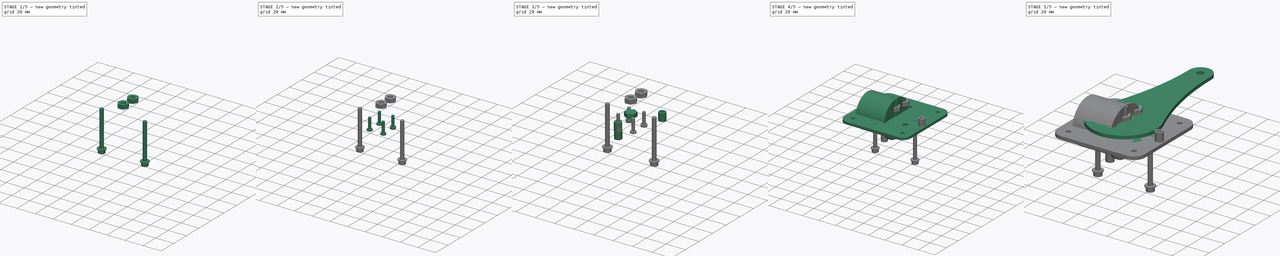
[diagram: build sequence overview — one tinted view per stage of 5, left to right]
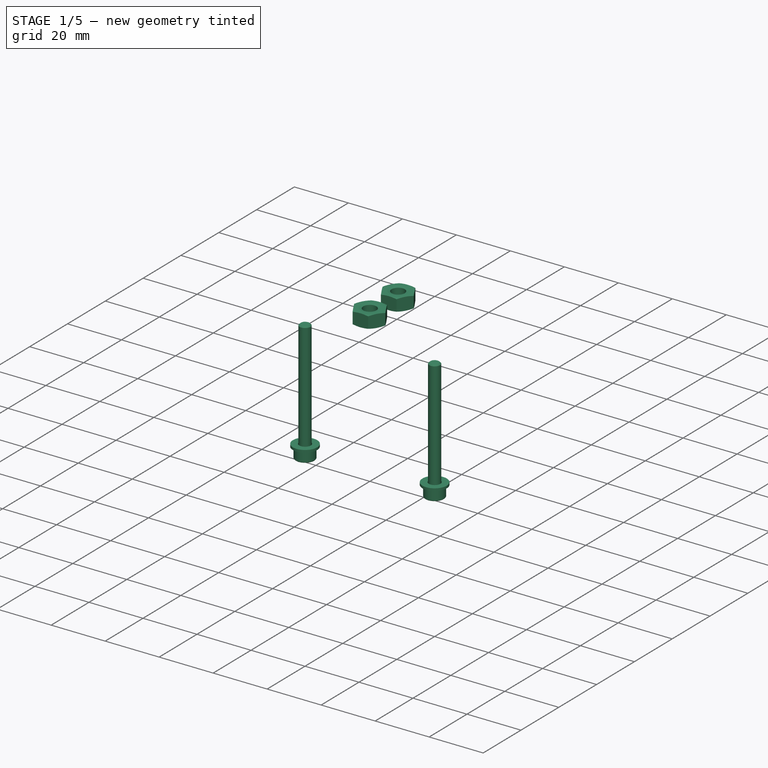
[diagram: stage 1 of 5 — iso view after this stage's code; geometry added in this stage tinted green]
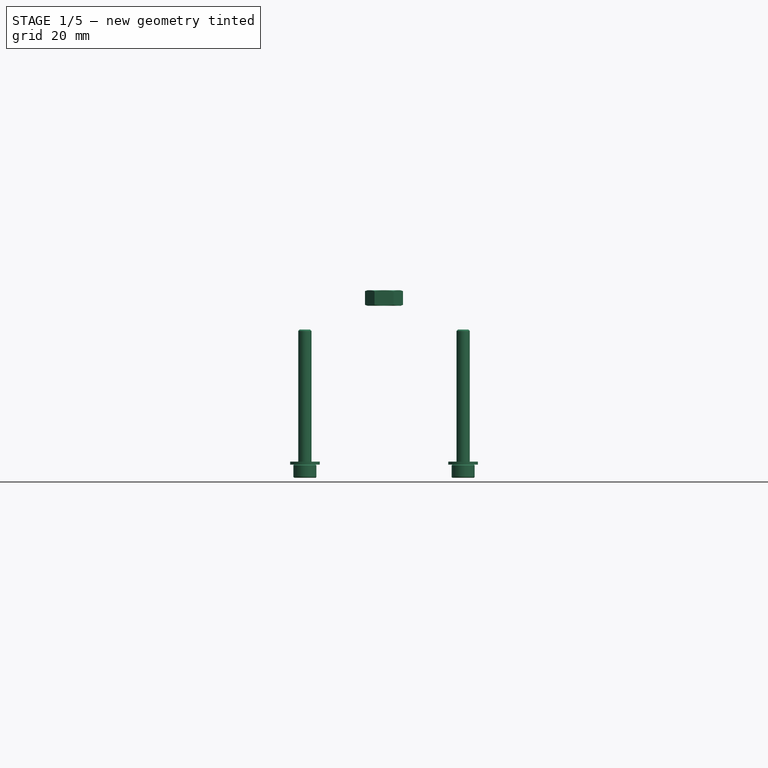
[diagram: stage 1 of 5 — front view after this stage's code; geometry added in this stage tinted green]
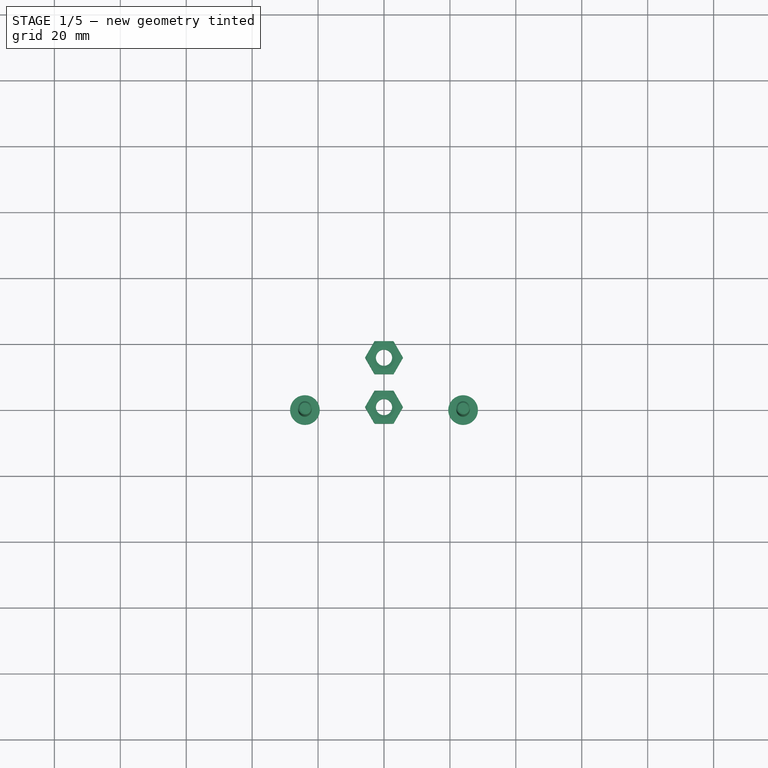
[diagram: stage 1 of 5 — top view after this stage's code; geometry added in this stage tinted green]
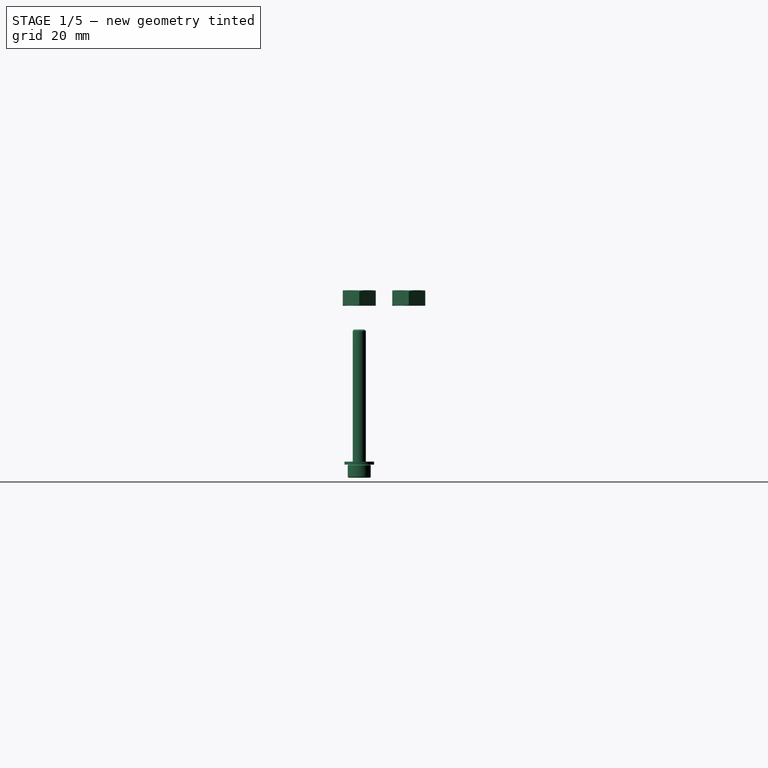
[diagram: stage 1 of 5 — right view after this stage's code; geometry added in this stage tinted green]
FCSTD DOCUMENT  (FreeCAD 0.20R27422 (Git))
Label: GasHebel
License: Creative Commons (CC BY-NC 4.0)
LicenseURL: https://creativecommons.org/licenses/by-nc/4.0/deed.de
objects: Part::Feature×29, Sketcher::SketchObject×15, PartDesign::Body×14, Part::FeaturePython×14, PartDesign::Pad×11, PartDesign::FeatureBase×3, App::LinkGroup×2, PartDesign::Pocket×2, App::Part×1, PartDesign::ShapeBinder×1, PartDesign::Revolution×1, App::DocumentObjectGroup×1, App::DocumentObjectGroupPython×1
note: 104 computed .brp shape members not serialized (recipe doc carries the construction recipe); baked Part::Feature solids carry a one-line shape summary decoded from their .brp

FEATURE [Part::FeaturePython] Nut  label="M6-Nut"  # Fasteners workbench fastener (typed FeaturePython)
  Placement = pos=(0,0,9) rot=(0,0,1;0rad)
  diameter = 8
  invert = false
  leftHanded = false
  matchOuter = false
  offset = 0
  thread = false
  type = 7
FEATURE [Part::FeaturePython] Nut001  label="M6-Nut001"  # Fasteners workbench fastener (typed FeaturePython)
  Placement = pos=(8.42e-13,15,9) rot=(0,0,1;0rad)
  diameter = 8
  invert = false
  leftHanded = false
  matchOuter = false
  offset = 0
  thread = false
  type = 7
FEATURE [PartDesign::Body] Body013  label="Bugel"
  Group = -> [Sketch015,Pad011]
  Origin = -> Origin014
  Placement = pos=(0,0,-38.3) rot=(0,0,1;0rad)
  Tip = -> Pad011
FEATURE [Part::FeaturePython] Washer004  label="M4-Washer"  # Fasteners workbench fastener (typed FeaturePython)
  Placement = pos=(24,0,-39.2) rot=(0,0,1;0rad)
  diameter = 5
  invert = false
  leftHanded = false
  matchOuter = false
  offset = 0
  type = 3
FEATURE [Part::FeaturePython] Washer005  label="M4-Washer001"  # Fasteners workbench fastener (typed FeaturePython)
  Placement = pos=(-24,0,-39.2) rot=(0,0,1;0rad)
  diameter = 5
  invert = false
  leftHanded = false
  matchOuter = false
  offset = 0
  type = 3
FEATURE [Part::FeaturePython] Screw005  label="M4x41-Screw"  # Fasteners workbench fastener (typed FeaturePython)
  Placement = pos=(-24,0,-39.2) rot=(1,0,0;3.14159rad)
  diameter = 5
  invert = false
  leftHanded = false
  length = 11
  lengthCustom = 41
  matchOuter = false
  offset = 0
  thread = false
  type = 34
FEATURE [Part::FeaturePython] Screw006  label="M4x41-Screw001"  # Fasteners workbench fastener (typed FeaturePython)
  Placement = pos=(24,0,-39.2) rot=(1,0,0;3.14159rad)
  diameter = 5
  invert = false
  leftHanded = false
  length = 11
  lengthCustom = 41
  matchOuter = false
  offset = 0
  thread = false
  type = 34
FEATURE [App::DocumentObjectGroup] Group  label="Fastener"
  Group = -> [Screw006,Washer004,Washer005,Screw005,Washer,Washer001,Washer002,Washer003,Screw,Screw001,Screw002,Screw003,Nut,Nut001,Body009,Body010,Body011,Body012,LinkGroup001]
FEATURE [App::DocumentObjectGroupPython] ExplodedAssembly  # scripted group (container) (typed FeaturePython)
  AnimationStep = 0
  CurrentTrajectory = 0
  InAnimation = false
  RemoveAllTrajectories = false
  ResetAnimation = false
FEATURE [Part::Feature] trajectory_line
  shape: bbox 48 x 2e-07 x 60 mm, 0 faces, 0 solids (baked)
FEATURE [Part::Feature] trajectory_line001
  shape: bbox 2e-07 x 2e-07 x 30 mm, 0 faces, 0 solids (baked)
FEATURE [Part::Feature] trajectory_line002
  shape: bbox 2e-07 x 2e-07 x 28 mm, 0 faces, 0 solids (baked)
FEATURE [Part::Feature] trajectory_line003
  shape: bbox 25 x 2e-07 x 2e-07 mm, 0 faces, 0 solids (baked)
FEATURE [Part::Feature] trajectory_line004
  shape: bbox 2e-07 x 70 x 2e-07 mm, 0 faces, 0 solids (baked)
FEATURE [Part::Feature] trajectory_line005
  shape: bbox 15.39 x 15.72 x 80 mm, 0 faces, 0 solids (baked)
FEATURE [Part::Feature] trajectory_line006
  shape: bbox 2e-07 x 2e-07 x 65 mm, 0 faces, 0 solids (baked)
FEATURE [Part::Feature] trajectory_line007
  shape: bbox 2e-07 x 2e-07 x 60 mm, 0 faces, 0 solids (baked)
FEATURE [Part::Feature] trajectory_line008
  shape: bbox 2e-07 x 2e-07 x 55 mm, 0 faces, 0 solids (baked)
FEATURE [Part::Feature] trajectory_line009
  shape: bbox 2e-07 x 15 x 40 mm, 0 faces, 0 solids (baked)
FEATURE [Part::Feature] trajectory_line010
  shape: bbox 2e-07 x 2e-07 x 25 mm, 0 faces, 0 solids (baked)
FEATURE [Part::Feature] trajectory_line011
  shape: bbox 2e-07 x 2e-07 x 40 mm, 0 faces, 0 solids (baked)
FEATURE [Part::Feature] trajectory_line012
  shape: bbox 2e-07 x 2e-07 x 15 mm, 0 faces, 0 solids (baked)
FEATURE [Part::Feature] trajectory_line013
  shape: bbox 2e-07 x 2e-07 x 10 mm, 0 faces, 0 solids (baked)
FEATURE [Part::Feature] trajectory_line014
  shape: bbox 2e-07 x 2e-07 x 15 mm, 0 faces, 0 solids (baked)
FEATURE [Part::Feature] trajectory_line015
  shape: bbox 2e-07 x 2e-07 x 20 mm, 0 faces, 0 solids (baked)
FEATURE [Part::Feature] Part__Feature001  label="M12_Cable"
  Placement = pos=(1e-15,-14.2,-54.1) rot=(0,1,0;3.14159rad)
  shape: bbox 16.32 x 16.32 x 30.78 mm, 155 faces (baked)
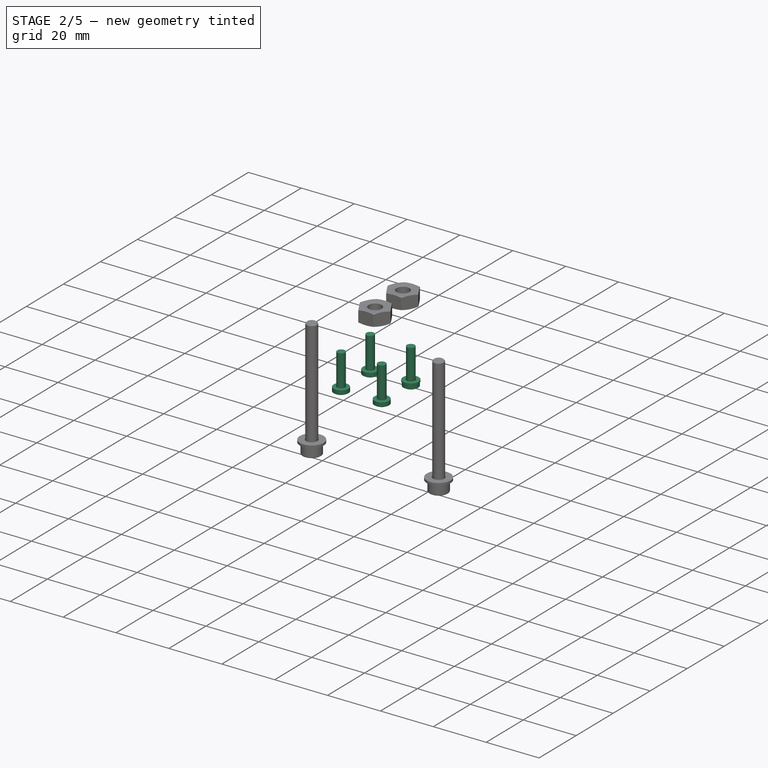
[diagram: stage 2 of 5 — iso view after this stage's code; geometry added in this stage tinted green]
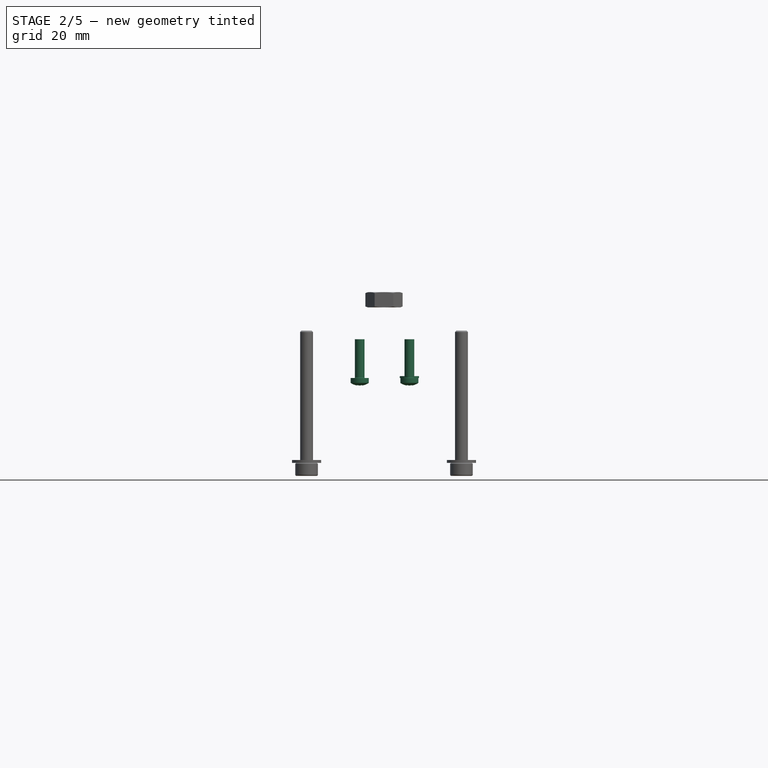
[diagram: stage 2 of 5 — front view after this stage's code; geometry added in this stage tinted green]
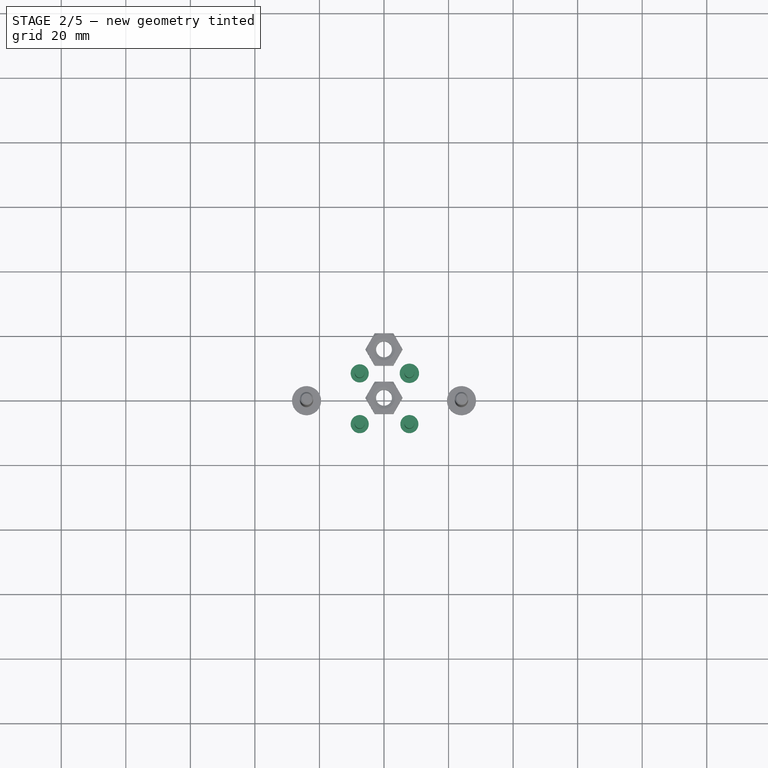
[diagram: stage 2 of 5 — top view after this stage's code; geometry added in this stage tinted green]
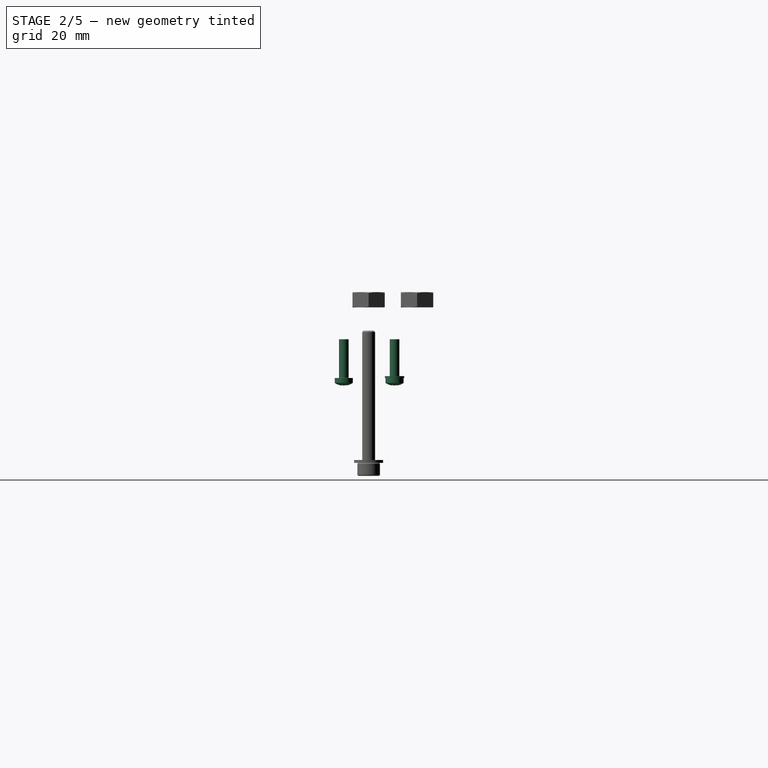
[diagram: stage 2 of 5 — right view after this stage's code; geometry added in this stage tinted green]
FEATURE [Part::FeaturePython] Washer002  label="M3-Washer089"  # Fasteners workbench fastener (typed FeaturePython)
  Placement = pos=(7.86091,8.02728,-12.325) rot=(1,0,0;3.14159rad)
  diameter = 4
  invert = true
  leftHanded = false
  matchOuter = false
  offset = 0
  type = 5
FEATURE [Part::FeaturePython] Washer003  label="M3-Washer090"  # Fasteners workbench fastener (typed FeaturePython)
  Placement = pos=(7.86091,-7.69455,-12.325) rot=(1,0,0;3.14159rad)
  diameter = 4
  invert = true
  leftHanded = false
  matchOuter = false
  offset = 0
  type = 5
FEATURE [Part::FeaturePython] Screw  label="M3x12-Screw"  # Fasteners workbench fastener (typed FeaturePython)
  Placement = pos=(-7.52818,8.02728,-12.875) rot=(0,1,0;3.14159rad)
  baseObject = -> Washer003
  diameter = 4
  invert = false
  leftHanded = false
  length = 5
  lengthCustom = 12
  matchOuter = false
  offset = 0
  thread = false
  type = 35
FEATURE [Part::FeaturePython] Screw001  label="M3x12-Screw096"  # Fasteners workbench fastener (typed FeaturePython)
  Placement = pos=(7.86091,8.02728,-12.875) rot=(0,1,0;3.14159rad)
  baseObject = -> Washer003
  diameter = 4
  invert = false
  leftHanded = false
  length = 5
  lengthCustom = 12
  matchOuter = false
  offset = 0
  thread = false
  type = 35
FEATURE [Part::FeaturePython] Screw002  label="M3x12-Screw097"  # Fasteners workbench fastener (typed FeaturePython)
  Placement = pos=(-7.52818,-7.69455,-12.875) rot=(0,1,0;3.14159rad)
  baseObject = -> Washer003
  diameter = 4
  invert = false
  leftHanded = false
  length = 5
  lengthCustom = 12
  matchOuter = false
  offset = 0
  thread = false
  type = 35
FEATURE [Part::FeaturePython] Screw003  label="M3x12-Screw098"  # Fasteners workbench fastener (typed FeaturePython)
  Placement = pos=(7.86091,-7.69455,-12.875) rot=(0,1,0;3.14159rad)
  baseObject = -> Washer003
  diameter = 4
  invert = false
  leftHanded = false
  length = 5
  lengthCustom = 12
  matchOuter = false
  offset = 0
  thread = false
  type = 35
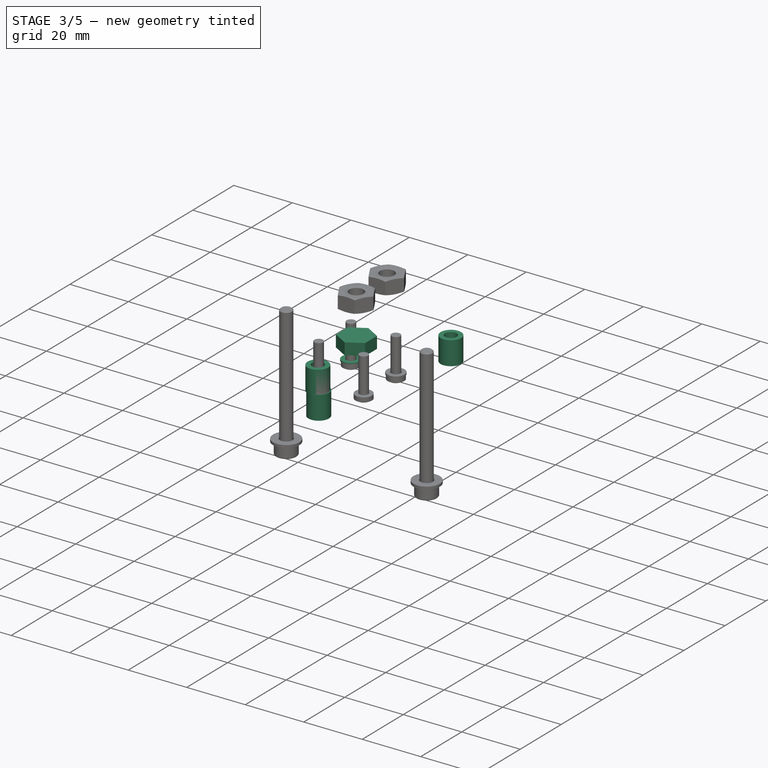
[diagram: stage 3 of 5 — iso view after this stage's code; geometry added in this stage tinted green]
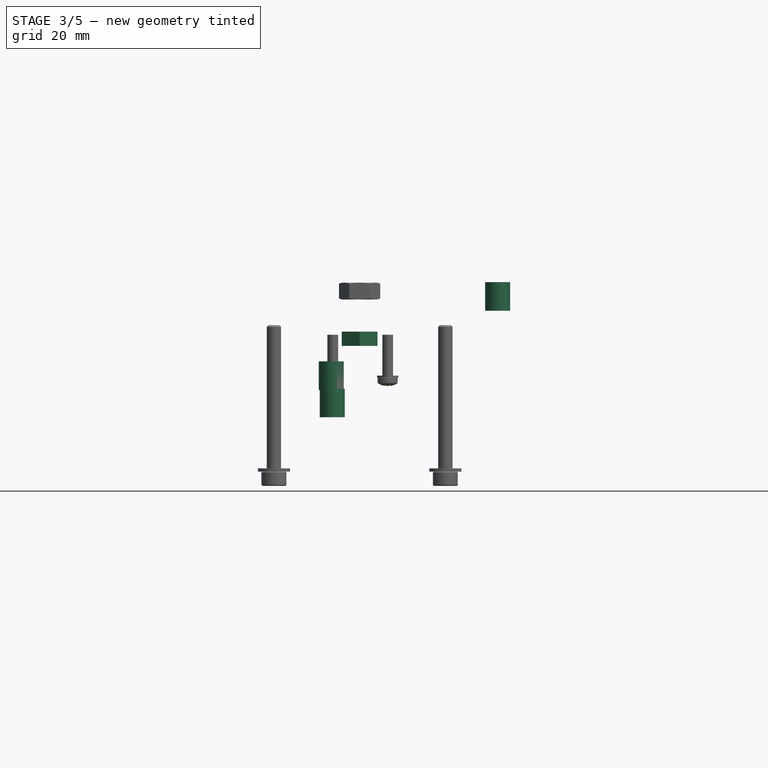
[diagram: stage 3 of 5 — front view after this stage's code; geometry added in this stage tinted green]
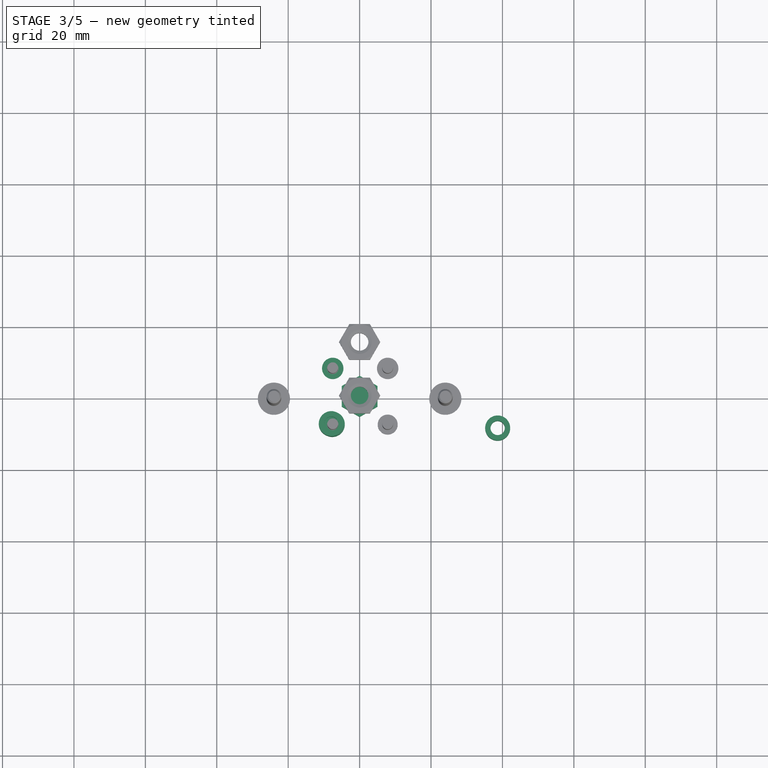
[diagram: stage 3 of 5 — top view after this stage's code; geometry added in this stage tinted green]
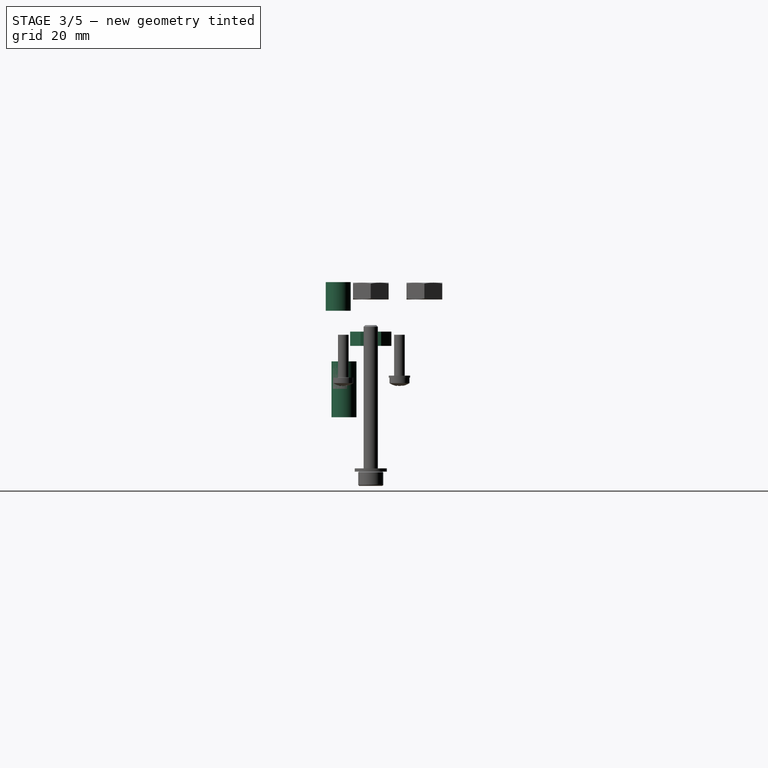
[diagram: stage 3 of 5 — right view after this stage's code; geometry added in this stage tinted green]
FEATURE [PartDesign::Body] Body006  label="HT_Muffe"
  Group = -> [Sketch009,Revolution]
  Origin = -> Origin007
  Placement = pos=(-2.398e-12,3.464e-12,-33.5) rot=(0,1,0;1.5708rad)
  Tip = -> Revolution
FEATURE [Sketcher::SketchObject] Sketch010
  FullyConstrained = true
  MapMode = 5
  Support = -> [XY_Plane008]
  sketch-geometry (7):
    g0: LineSegment StartX=5 StartY=-2.88675 StartZ=0 EndX=5 EndY=2.88675 EndZ=0
    g1: LineSegment StartX=5 StartY=2.88675 StartZ=0 EndX=6.32543e-11 EndY=5.7735 EndZ=0
    g2: LineSegment StartX=6.32543e-11 StartY=5.7735 StartZ=0 EndX=-5 EndY=2.88675 EndZ=0
    g3: LineSegment StartX=-5 StartY=2.88675 StartZ=0 EndX=-5 EndY=-2.88675 EndZ=0
    g4: LineSegment StartX=-5 StartY=-2.88675 StartZ=0 EndX=-3.62377e-11 EndY=-5.7735 EndZ=0
    g5: LineSegment StartX=-3.62377e-11 StartY=-5.7735 StartZ=0 EndX=5 EndY=-2.88675 EndZ=0
    g6: Circle CenterX=8.8812e-12 CenterY=-1.0345e-11 CenterZ=0 NormalX=0 NormalY=0 NormalZ=1 AngleXU=0 Radius=5.7735
  constraints (16):
    c: Coincident(g0,g1)
    c: Coincident(g1,g2)
    c: Coincident(g2,g3)
    c: Coincident(g3,g4)
    c: Coincident(g4,g5)
    c: Coincident(g5,g0)
    c: Equal(g0, g1-g5) x5
    c: PointOnObject(g0,g6)
    c: PointOnObject(g1,g6)
    c: PointOnObject(g2,g6)
    c: PointOnObject(g3,g6)
    c: PointOnObject(g4,g6)
    c: PointOnObject(g5,g6)
    c: Coincident(g6,g-1)
    c: Vertical(g3)
    c: DistanceX(g3,g0) = 10
FEATURE [PartDesign::Pad] Pad007
  Direction = (0,0,1)
  Length = 4
  Length2 = 10
  Profile = -> Sketch010
  ReferenceAxis = -> Sketch010 [N_Axis]
  Reversed = true
  Type = 0
FEATURE [PartDesign::Body] Body007  label="SchraubeM6"
  Group = -> [Sketch010,Pad007,Sketch011,Pad008,Sketch013,Pocket001]
  Origin = -> Origin008
  Placement = pos=(0,0,7) rot=(0,0,1;0rad)
  Tip = -> Pocket001
FEATURE [App::LinkGroup] LinkGroup001  label="SchraubeUScheibe"
  ElementList = -> [Body007,Body008]
  LinkMode = 0
  Placement = pos=(-7.2378e-12,7.15256e-07,-11.6) rot=(0,0,1;0rad)
FEATURE [Part::Feature] Part__Feature  label="HI_03000-06_(0)"
  Placement = pos=(0,15,17.1) rot=(-1,0,0;1.5708rad)
  shape: bbox 6 x 6 x 15 mm, 16 faces (baked)
FEATURE [Sketcher::SketchObject] Sketch014
  FullyConstrained = true
  MapMode = 5
  Support = -> [XY_Plane010]
  sketch-geometry (2):
    g0: Circle CenterX=0 CenterY=0 CenterZ=0 NormalX=0 NormalY=0 NormalZ=1 AngleXU=0 Radius=2
    g1: Circle CenterX=0 CenterY=0 CenterZ=0 NormalX=0 NormalY=0 NormalZ=1 AngleXU=0 Radius=3.5
  constraints (4):
    c: Coincident(g0,g-1)
    c: Diameter(g0) = 4
    c: Coincident(g1,g0)
    c: Diameter(g1) = 7
FEATURE [PartDesign::Pad] Pad010
  Direction = (0,0,1)
  Length = 8
  Length2 = 8
  Profile = -> Sketch014
  ReferenceAxis = -> Sketch014 [N_Axis]
  Type = 0
FEATURE [PartDesign::Body] Body009  label="Distanz0"
  Group = -> [Sketch014,Pad010]
  Origin = -> Origin010
  Placement = pos=(-7.861,-7.695,-11) rot=(0,0,1;0rad)
  Tip = -> Pad010
FEATURE [PartDesign::FeatureBase] Clone
  BaseFeature = -> Body009
  Placement = pos=(-7.651,-7.507,-24) rot=(0,0,1;0rad)
FEATURE [PartDesign::Body] Body010  label="Distanz1"
  BaseFeature = -> Body009
  Group = -> [Clone]
  Origin = -> Origin011
  Placement = pos=(15.5119,-0.187545,13) rot=(0,0,1;0rad)
  Tip = -> Clone
FEATURE [PartDesign::FeatureBase] Clone001
  BaseFeature = -> Body009
  Placement = pos=(-7.93236,-7.50654,-16.3503) rot=(0,0,1;0rad)
FEATURE [PartDesign::Body] Body011  label="Distanz2"
  BaseFeature = -> Body009
  Group = -> [Clone001]
  Origin = -> Origin012
  Placement = pos=(15.7933,15.2011,5.35034) rot=(0,0,1;0rad)
  Tip = -> Clone001
FEATURE [PartDesign::FeatureBase] Clone002
  BaseFeature = -> Pad010
  Placement = pos=(38.6586,-9.10437,5.85034) rot=(0,0,1;0rad)
FEATURE [PartDesign::Body] Body012  label="Distanz3"
  BaseFeature = -> Pad010
  Group = -> [Clone002]
  Origin = -> Origin013
  Placement = pos=(-46.5195,16.7989,-16.8503) rot=(0,0,1;0rad)
  Tip = -> Clone002
FEATURE [Part::FeaturePython] Washer  label="M3-Washer"  # Fasteners workbench fastener (typed FeaturePython)
  Placement = pos=(-7.52818,8.02728,-12.325) rot=(1,0,0;3.14159rad)
  diameter = 4
  invert = true
  leftHanded = false
  matchOuter = false
  offset = 0
  type = 5
FEATURE [Part::FeaturePython] Washer001  label="M3-Washer088"  # Fasteners workbench fastener (typed FeaturePython)
  Placement = pos=(-7.52818,-7.69455,-12.325) rot=(1,0,0;3.14159rad)
  diameter = 4
  invert = true
  leftHanded = false
  matchOuter = false
  offset = 0
  type = 5
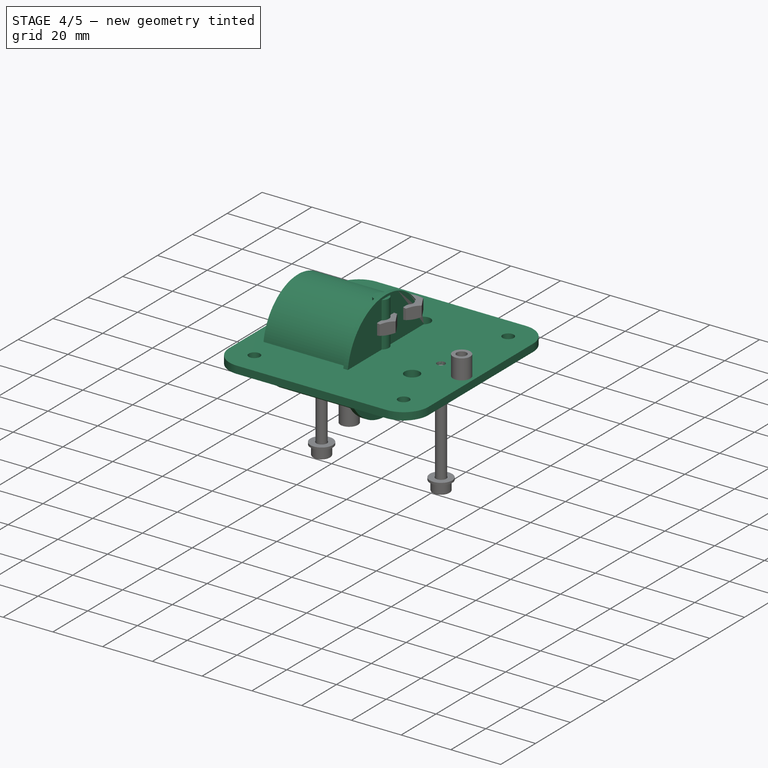
[diagram: stage 4 of 5 — iso view after this stage's code; geometry added in this stage tinted green]
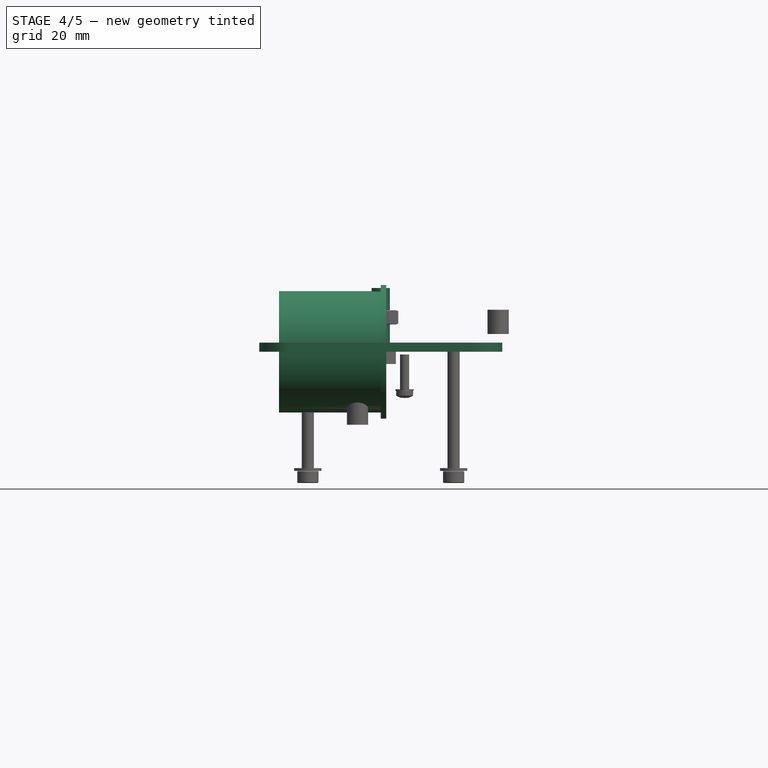
[diagram: stage 4 of 5 — front view after this stage's code; geometry added in this stage tinted green]
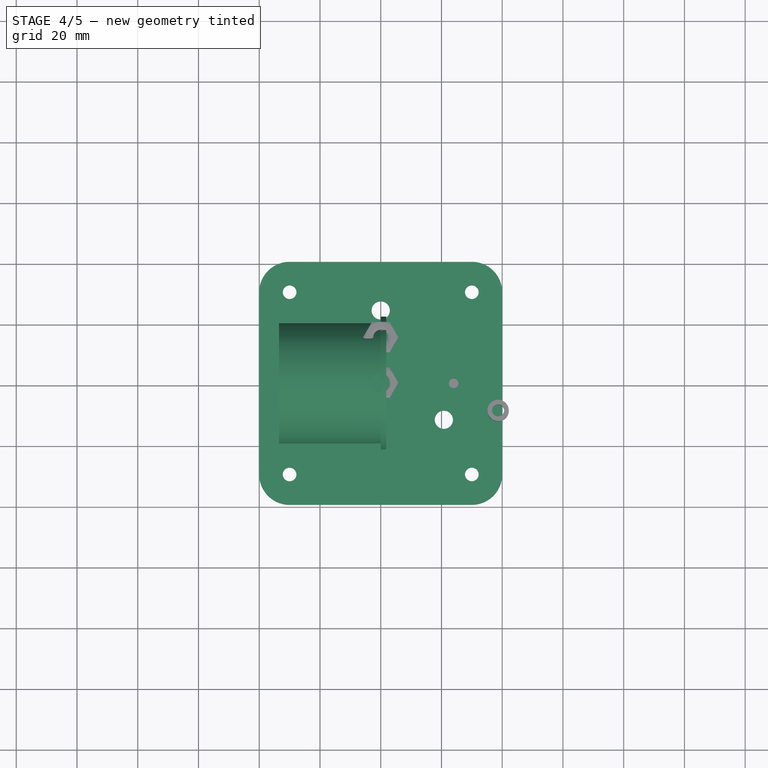
[diagram: stage 4 of 5 — top view after this stage's code; geometry added in this stage tinted green]
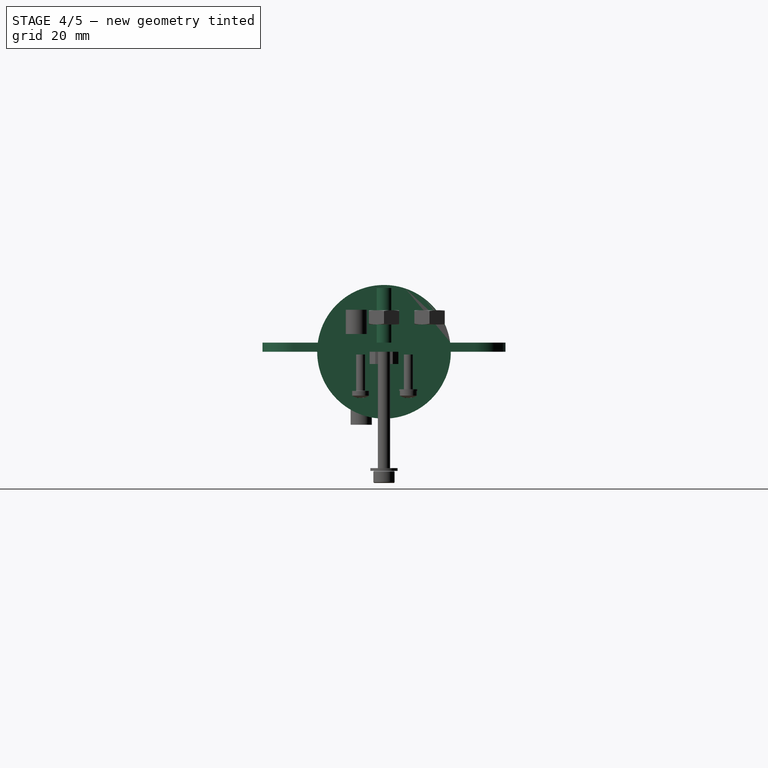
[diagram: stage 4 of 5 — right view after this stage's code; geometry added in this stage tinted green]
FEATURE [Sketcher::SketchObject] Sketch
  FullyConstrained = true
  MapMode = 5
  Support = -> [XY_Plane]
  sketch-geometry (23):
    g0: LineSegment StartX=-30 StartY=40 StartZ=0 EndX=30 EndY=40 EndZ=0
    g1: LineSegment StartX=40 StartY=30 StartZ=0 EndX=40 EndY=-30 EndZ=0
    g2: LineSegment StartX=30 StartY=-40 StartZ=0 EndX=-30 EndY=-40 EndZ=0
    g3: LineSegment StartX=-40 StartY=-30 StartZ=0 EndX=-40 EndY=30 EndZ=0
    g4: ArcOfCircle CenterX=-30 CenterY=30 CenterZ=0 NormalX=0 NormalY=0 NormalZ=1 AngleXU=0 Radius=10 StartAngle=1.5708 EndAngle=3.14159
    g5: ArcOfCircle CenterX=-30 CenterY=-30 CenterZ=0 NormalX=0 NormalY=0 NormalZ=1 AngleXU=0 Radius=10 StartAngle=3.14159 EndAngle=4.71239
    g6: ArcOfCircle CenterX=30 CenterY=-30 CenterZ=0 NormalX=0 NormalY=0 NormalZ=1 AngleXU=0 Radius=10 StartAngle=4.71239 EndAngle=6.28319
    g7: ArcOfCircle CenterX=30 CenterY=30 CenterZ=0 NormalX=0 NormalY=0 NormalZ=1 AngleXU=0 Radius=10 StartAngle=0 EndAngle=1.5708
    g8: Circle CenterX=0 CenterY=0 CenterZ=0 NormalX=0 NormalY=0 NormalZ=1 AngleXU=0 Radius=3
    g9: Circle CenterX=-30 CenterY=30 CenterZ=0 NormalX=0 NormalY=0 NormalZ=1 AngleXU=0 Radius=2.25
    g10: Circle CenterX=-30 CenterY=-30 CenterZ=0 NormalX=0 NormalY=0 NormalZ=1 AngleXU=0 Radius=2.25
    g11: Circle CenterX=30 CenterY=-30 CenterZ=0 NormalX=0 NormalY=0 NormalZ=1 AngleXU=0 Radius=2.25
    g12: Circle CenterX=30 CenterY=30 CenterZ=0 NormalX=0 NormalY=0 NormalZ=1 AngleXU=0 Radius=2.25
    g13: Circle CenterX=3.6e-15 CenterY=24 CenterZ=0 NormalX=0 NormalY=0 NormalZ=1 AngleXU=0 Radius=3
    g14: Circle CenterX=-20.7846 CenterY=-12 CenterZ=0 NormalX=0 NormalY=0 NormalZ=1 AngleXU=0 Radius=3
    g15: Circle CenterX=20.7846 CenterY=-12 CenterZ=0 NormalX=0 NormalY=0 NormalZ=1 AngleXU=0 Radius=3
    g16: LineSegment StartX=20.7846 StartY=-12 StartZ=0 EndX=3.6e-15 EndY=24 EndZ=0
    g17: LineSegment StartX=3.6e-15 StartY=24 StartZ=0 EndX=-20.7846 EndY=-12 EndZ=0
    g18: LineSegment StartX=-20.7846 StartY=-12 StartZ=0 EndX=20.7846 EndY=-12 EndZ=0
    g19: Circle CenterX=0 CenterY=0 CenterZ=0 NormalX=0 NormalY=0 NormalZ=1 AngleXU=0 Radius=24
    g20: Circle CenterX=-24 CenterY=0 CenterZ=0 NormalX=0 NormalY=0 NormalZ=1 AngleXU=0 Radius=1.6
    g21: Circle CenterX=24 CenterY=0 CenterZ=0 NormalX=0 NormalY=0 NormalZ=1 AngleXU=0 Radius=1.6
    g22: Circle CenterX=0 CenterY=0 CenterZ=0 NormalX=0 NormalY=0 NormalZ=1 AngleXU=0 Radius=15
  constraints (53):
    c: Horizontal(g0)
    c: Horizontal(g2)
    c: Vertical(g1)
    c: Vertical(g3)
    c: Equal(g0,g1)
    c: Tangent(g0,g4) = 1.5708
    c: Tangent(g3,g4) = 1.5708
    c: Tangent(g2,g5) = 1.5708
    c: Tangent(g3,g5) = 1.5708
    c: Tangent(g2,g6) = 1.5708
    c: Tangent(g1,g6) = 1.5708
    c: Tangent(g0,g7) = 1.5708
    c: Tangent(g1,g7) = 1.5708
    c: Equal(g4,g5)
    c: Equal(g4,g7)
    c: Equal(g4,g6)
    c: Radius(g4) = 10
    c: Symmetric(g3,g1,g-1)
    c: DistanceX(g3,g1) = 80
    c: Diameter(g8) = 6
    c: Coincident(g8,g-1)
    c: Coincident(g9,g4)
    c: Coincident(g10,g5)
    c: Coincident(g12,g7)
    c: Diameter(g9) = 4.5
    c: Equal(g9,g10)
    c: Equal(g11,g12)
    c: Coincident(g11,g6)
    c: Equal(g9,g12)
    c: Diameter(g13) = 6
    c: Equal(g13,g15)
    c: Equal(g13,g14)
    c: Coincident(g16,g17)
    c: Coincident(g17,g18)
    c: Coincident(g18,g16)
    c: Equal(g16,g17)
    c: Equal(g16,g18)
    c: PointOnObject(g16,g19)
    c: PointOnObject(g17,g19)
    c: PointOnObject(g18,g19)
    c: Coincident(g19,g8)
    c: Diameter(g19) = 48
    c: Horizontal(g18)
    c: Coincident(g14,g17)
    c: Coincident(g15,g16)
    c: Coincident(g13,g16)
    c: Diameter(g20) = 3.2
    c: PointOnObject(g20,g-1)
    c: Equal(g20,g21)
    c: Symmetric(g20,g21,g8)
    c: DistanceX(g20,g8) = 24
    c: Coincident(g22,g8)
    c: Radius(g22) = 15
FEATURE [PartDesign::Pad] Pad
  Direction = (0,0,1)
  Length = 3
  Length2 = 100
  Profile = -> Sketch
  ReferenceAxis = -> Sketch [N_Axis]
  Type = 0
FEATURE [PartDesign::Body] Body  label="Montageplatte"
  Group = -> [Sketch,Pad,Sketch008,Pocket]
  Origin = -> Origin
  Tip = -> Pocket
FEATURE [Sketcher::SketchObject] Sketch009
  FullyConstrained = true
  MapMode = 5
  Support = -> [XY_Plane007]
  expr: Constraints[17] = 40mm / 2
  sketch-geometry (8):
    g0: LineSegment StartX=-33.5 StartY=20 StartZ=0 EndX=8.26219e-11 EndY=20 EndZ=0
    g1: LineSegment StartX=8.26219e-11 StartY=20 StartZ=0 EndX=8.26219e-11 EndY=22 EndZ=0
    g2: LineSegment StartX=8.26219e-11 StartY=22 StartZ=0 EndX=1.8 EndY=22 EndZ=0
    g3: LineSegment StartX=1.8 StartY=22 StartZ=0 EndX=1.8 EndY=0 EndZ=0
    g4: LineSegment StartX=1.8 StartY=0 StartZ=0 EndX=8.26219e-11 EndY=0 EndZ=0
    g5: LineSegment StartX=8.26219e-11 StartY=0 StartZ=0 EndX=8.26219e-11 EndY=18.2 EndZ=0
    g6: LineSegment StartX=8.26219e-11 StartY=18.2 StartZ=0 EndX=-33.5 EndY=18.2 EndZ=0
    g7: LineSegment StartX=-33.5 StartY=18.2 StartZ=0 EndX=-33.5 EndY=20 EndZ=0
  constraints (24):
    c: Horizontal(g0)
    c: Coincident(g0,g1)
    c: Vertical(g1)
    c: Coincident(g1,g2)
    c: Horizontal(g2)
    c: Coincident(g2,g3)
    c: Vertical(g3)
    c: Coincident(g3,g4)
    c: Horizontal(g4)
    c: Coincident(g4,g5)
    c: Vertical(g5)
    c: Coincident(g5,g6)
    c: Horizontal(g6)
    c: Coincident(g6,g7)
    c: Coincident(g7,g0)
    c: Vertical(g0,g6)
    c: Vertical(g0,g5)
    c: DistanceY(g4,g0) = 20
    c: DistanceY(g7,g7) = 1.8
    c: DistanceX(g1,g2) = 1.8
    c: DistanceY(g0,g1) = 2
    c: DistanceX(g0,g0) = 33.5
    c: PointOnObject(g4,g-1)
    c: PointOnObject(g4,g-2)
FEATURE [PartDesign::Revolution] Revolution
  Angle = 360
  Axis = (1,0,0)
  Base = (0,0,0)
  Profile = -> Sketch009
  ReferenceAxis = -> X_Axis007
FEATURE [Sketcher::SketchObject] Sketch011
  FullyConstrained = true
  MapMode = 5
  Support = -> [XY_Plane008]
  sketch-geometry (1):
    g0: Circle CenterX=0 CenterY=0 CenterZ=0 NormalX=0 NormalY=0 NormalZ=1 AngleXU=0 Radius=3
  constraints (2):
    c: Coincident(g0,g-1)
    c: Diameter(g0) = 6
FEATURE [PartDesign::Pad] Pad008
  BaseFeature = -> Pad007
  Direction = (0,0,1)
  Length = 21
  Length2 = 10
  Profile = -> Sketch011
  ReferenceAxis = -> Sketch011 [N_Axis]
  Type = 0
FEATURE [Sketcher::SketchObject] Sketch012
  FullyConstrained = true
  MapMode = 5
  Support = -> [XY_Plane009]
  sketch-geometry (2):
    g0: Circle CenterX=0 CenterY=0 CenterZ=0 NormalX=0 NormalY=0 NormalZ=1 AngleXU=0 Radius=3.2
    g1: Circle CenterX=0 CenterY=0 CenterZ=0 NormalX=0 NormalY=0 NormalZ=1 AngleXU=0 Radius=6
  constraints (4):
    c: Coincident(g0,g-1)
    c: Diameter(g0) = 6.4
    c: Coincident(g1,g0)
    c: Diameter(g1) = 12
FEATURE [PartDesign::Pad] Pad009
  Direction = (0,0,1)
  Length = 1.6
  Length2 = 10
  Profile = -> Sketch012
  ReferenceAxis = -> Sketch012 [N_Axis]
  Type = 0
FEATURE [PartDesign::Body] Body008  label="UScheibeM6"
  Group = -> [Sketch012,Pad009]
  Origin = -> Origin009
  Placement = pos=(0,0,7) rot=(0,0,1;0rad)
  Tip = -> Pad009
FEATURE [Sketcher::SketchObject] Sketch013
  AttachmentOffset = pos=(0,0,-4) rot=(0,0,1;0rad)
  FullyConstrained = true
  MapMode = 5
  Placement = pos=(0,0,-4) rot=(0,0,1;0rad)
  Support = -> [XY_Plane008]
  sketch-geometry (1):
    g0: Circle CenterX=0 CenterY=4.3473e-12 CenterZ=0 NormalX=0 NormalY=0 NormalZ=1 AngleXU=0 Radius=2.5
  constraints (3):
    c: Diameter(g0) = 5
    c: PointOnObject(g0,g-2)
    c: PointOnObject(g0,g-1)
FEATURE [PartDesign::Pocket] Pocket001
  BaseFeature = -> Pad008
  Direction = (0,0,-1)
  Length = 2
  Length2 = 5
  Profile = -> Sketch013
  ReferenceAxis = -> Sketch013 [N_Axis]
  Reversed = true
  Type = 0
FEATURE [Sketcher::SketchObject] Sketch015
  FullyConstrained = true
  MapMode = 5
  Support = -> [XY_Plane014]
  sketch-geometry (18):
    g0: LineSegment StartX=-28 StartY=5 StartZ=0 EndX=28 EndY=5 EndZ=0
    g1: LineSegment StartX=30 StartY=3 StartZ=0 EndX=30 EndY=-3 EndZ=0
    g2: LineSegment StartX=28 StartY=-5 StartZ=0 EndX=9.12195 EndY=-5 EndZ=0
    g3: LineSegment StartX=-30 StartY=-3 StartZ=0 EndX=-30 EndY=3 EndZ=0
    g4: Circle CenterX=-24 CenterY=-3.11174e-11 CenterZ=0 NormalX=0 NormalY=0 NormalZ=1 AngleXU=0 Radius=2.25
    g5: Circle CenterX=24 CenterY=-3.11174e-11 CenterZ=0 NormalX=0 NormalY=0 NormalZ=1 AngleXU=0 Radius=2.25
    g6: ArcOfCircle CenterX=4.32e-14 CenterY=-8.2 CenterZ=0 NormalX=0 NormalY=0 NormalZ=1 AngleXU=0 Radius=8.5 StartAngle=0.518109 EndAngle=2.62348
    g7: LineSegment StartX=-9.12195 StartY=-5 StartZ=0 EndX=-28 EndY=-5 EndZ=0
    g8: ArcOfCircle CenterX=-28 CenterY=3 CenterZ=0 NormalX=0 NormalY=0 NormalZ=1 AngleXU=0 Radius=2 StartAngle=1.5708 EndAngle=3.14159
    g9: GeomPoint X=-30 Y=5 Z=0
    g10: ArcOfCircle CenterX=-28 CenterY=-3 CenterZ=0 NormalX=0 NormalY=0 NormalZ=1 AngleXU=0 Radius=2 StartAngle=3.14159 EndAngle=4.71239
    g11: GeomPoint X=-30 Y=-5 Z=0
    g12: ArcOfCircle CenterX=28 CenterY=3 CenterZ=0 NormalX=0 NormalY=0 NormalZ=1 AngleXU=0 Radius=2 StartAngle=-3.304e-13 EndAngle=1.5708
    g13: GeomPoint X=30 Y=5 Z=0
    g14: ArcOfCircle CenterX=28 CenterY=-3 CenterZ=0 NormalX=0 NormalY=0 NormalZ=1 AngleXU=0 Radius=2 StartAngle=4.71239 EndAngle=6.28319
    g15: GeomPoint X=30 Y=-5 Z=0
    g16: ArcOfCircle CenterX=9.12195 CenterY=-3 CenterZ=0 NormalX=0 NormalY=0 NormalZ=1 AngleXU=0 Radius=2 StartAngle=3.6597 EndAngle=4.71239
    g17: ArcOfCircle CenterX=-9.12195 CenterY=-3 CenterZ=0 NormalX=0 NormalY=0 NormalZ=1 AngleXU=0 Radius=2 StartAngle=4.71239 EndAngle=5.76508
  constraints (44):
    c: Horizontal(g0)
    c: Horizontal(g2)
    c: Vertical(g1)
    c: Vertical(g3)
    c: Symmetric(g11,g13,g-1)
    c: DistanceY(g15,g13) = 10
    c: DistanceX(g9,g13) = 60
    c: Diameter(g4) = 4.5
    c: DistanceX(g4,g-1) = 24
    c: Diameter(g5) = 4.5
    c: Horizontal(g4,g5)
    c: PointOnObject(g4,g-1)
    c: Diameter(g6) = 17
    c: PointOnObject(g6,g-2)
    c: DistanceY(g6,g11) = 3.2
    c: Horizontal(g7)
    c: DistanceX(g-1,g5) = 24
    c: PointOnObject(g9,g0)
    c: PointOnObject(g9,g3)
    c: Tangent(g0,g8) = 1.5708
    c: Tangent(g3,g8) = 1.5708
    c: PointOnObject(g11,g3)
    c: PointOnObject(g11,g7)
    c: Tangent(g3,g10) = 1.5708
    c: Tangent(g7,g10) = 1.5708
    c: PointOnObject(g13,g0)
    c: PointOnObject(g13,g1)
    c: Tangent(g0,g12) = 1.5708
    c: Tangent(g1,g12) = 1.5708
    c: PointOnObject(g15,g2)
    c: PointOnObject(g15,g1)
    c: Tangent(g2,g14) = 1.5708
    c: Tangent(g1,g14) = 1.5708
    c: Radius(g12) = 2
    c: Equal(g12,g14)
    c: Equal(g12,g8)
    c: Equal(g12,g10)
    c: Tangent(g6,g16) = 1.5708
    c: Tangent(g2,g16) = 1.5708
    c: Tangent(g7,g17) = 1.5708
    c: Tangent(g6,g17) = 1.5708
    c: Equal(g12,g17)
    c: Equal(g17,g16)
    c: Equal(g1,g3)
FEATURE [PartDesign::Pad] Pad011
  Direction = (0,0,1)
  Length = 3
  Length2 = 10
  Profile = -> Sketch015
  ReferenceAxis = -> Sketch015 [N_Axis]
  Type = 0
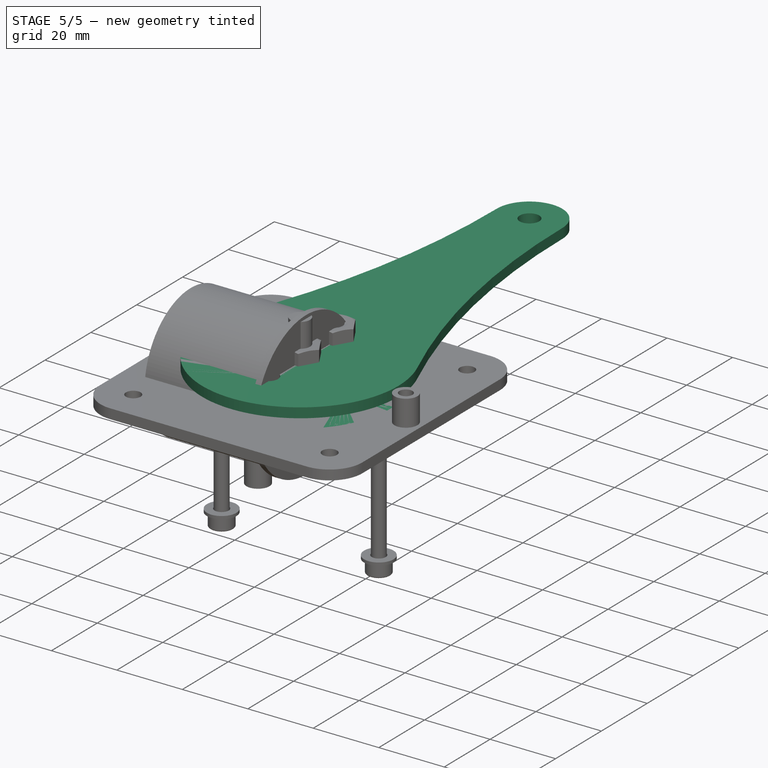
[diagram: stage 5 of 5 — iso view after this stage's code; geometry added in this stage tinted green]
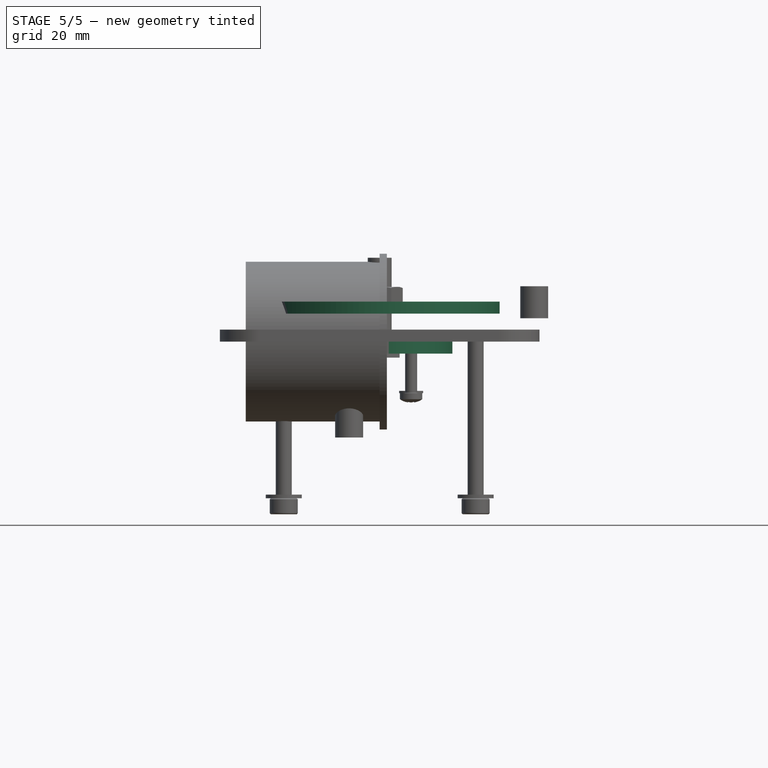
[diagram: stage 5 of 5 — front view after this stage's code; geometry added in this stage tinted green]
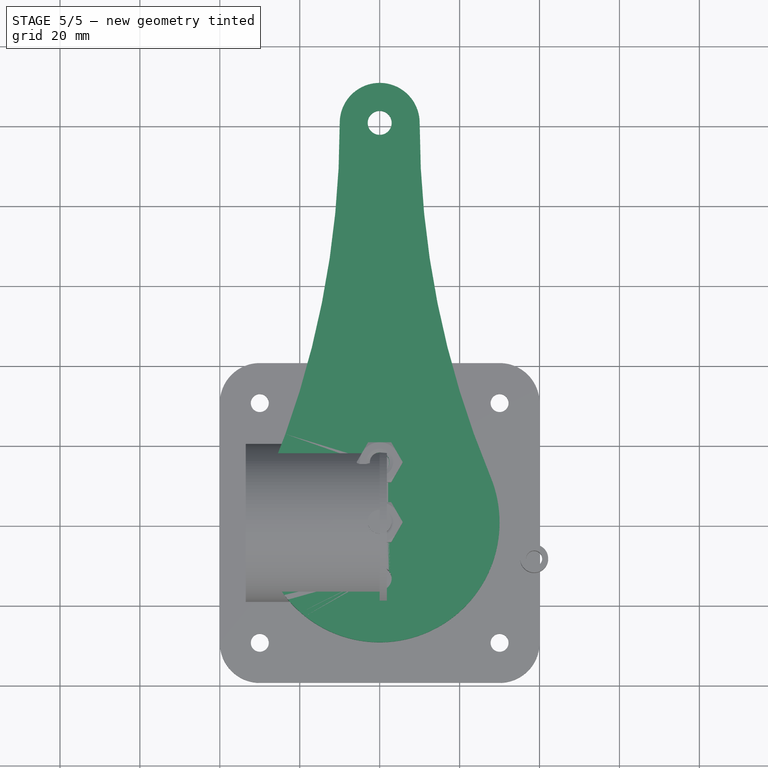
[diagram: stage 5 of 5 — top view after this stage's code; geometry added in this stage tinted green]
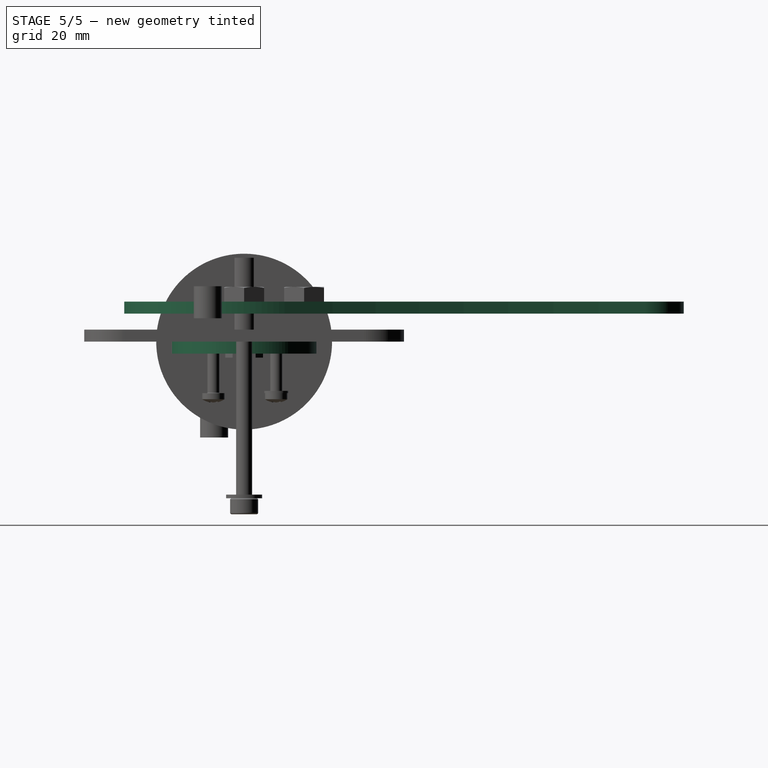
[diagram: stage 5 of 5 — right view after this stage's code; geometry added in this stage tinted green]
FEATURE [Sketcher::SketchObject] Sketch001
  AttachmentOffset = pos=(0,0,7) rot=(0,0,1;0rad)
  FullyConstrained = true
  MapMode = 5
  Placement = pos=(0,0,7) rot=(0,0,1;0rad)
  Support = -> [XY_Plane001]
  sketch-geometry (9):
    g0: ArcOfCircle CenterX=-8.433e-13 CenterY=8.6e-15 CenterZ=0 NormalX=0 NormalY=0 NormalZ=1 AngleXU=0 Radius=30 StartAngle=2.7468 EndAngle=6.67798
    g1: ArcOfCircle CenterX=8.433e-13 CenterY=100 CenterZ=0 NormalX=0 NormalY=0 NormalZ=1 AngleXU=0 Radius=10 StartAngle=0 EndAngle=3.14159
    g2: ArcOfCircle CenterX=240 CenterY=100 CenterZ=0 NormalX=0 NormalY=0 NormalZ=1 AngleXU=0 Radius=230 StartAngle=3.14159 EndAngle=3.53638
    g3: ArcOfCircle CenterX=-240 CenterY=100 CenterZ=0 NormalX=0 NormalY=0 NormalZ=1 AngleXU=0 Radius=230 StartAngle=5.88839 EndAngle=6.28319
    g4: Circle CenterX=8.433e-13 CenterY=100 CenterZ=0 NormalX=0 NormalY=0 NormalZ=1 AngleXU=0 Radius=3
    g5: Circle CenterX=-8.433e-13 CenterY=8.6e-15 CenterZ=0 NormalX=0 NormalY=0 NormalZ=1 AngleXU=0 Radius=2.4
    g6: Circle CenterX=0 CenterY=15 CenterZ=0 NormalX=0 NormalY=0 NormalZ=1 AngleXU=0 Radius=2.4
    g7: Circle CenterX=-8.433e-13 CenterY=8.6e-15 CenterZ=0 NormalX=0 NormalY=0 NormalZ=1 AngleXU=0 Radius=15
    g8: Circle CenterX=0 CenterY=-14 CenterZ=0 NormalX=0 NormalY=0 NormalZ=1 AngleXU=0 Radius=3
  constraints (25):
    c: Coincident(g0,g-1)
    c: Diameter(g0) = 60
    c: PointOnObject(g1,g-2)
    c: Diameter(g1) = 20
    c: DistanceY(g0,g1) = 100
    c: Horizontal(g3,g2)
    c: Horizontal(g2,g3)
    c: Coincident(g4,g1)
    c: Diameter(g4) = 6
    c: Equal(g2,g3)
    c: Horizontal(g2,g1)
    c: Coincident(g5,g0)
    c: Diameter(g5) = 4.8
    c: DistanceY(g0,g6) = 15
    c: PointOnObject(g6,g-2)
    c: Coincident(g1,g3)
    c: Tangent(g1,g2) = 1.5708
    c: Tangent(g0,g2) = 1.5708
    c: Coincident(g0,g3)
    c: Coincident(g7,g0)
    c: Diameter(g7) = 30
    c: Diameter(g6) = 4.8
    c: Diameter(g8) = 6
    c: DistanceY(g8,g0) = 14
    c: PointOnObject(g8,g-2)
FEATURE [PartDesign::Pad] Pad001
  Direction = (0,0,1)
  Length = 3
  Length2 = 100
  Profile = -> Sketch001
  ReferenceAxis = -> Sketch001 [N_Axis]
  Type = 0
FEATURE [PartDesign::Body] Body001  label="Hebel"
  Group = -> [Sketch001,Pad001]
  Origin = -> Origin001
  Placement = pos=(0,0,-1) rot=(0,0,1;0rad)
  Tip = -> Pad001
FEATURE [Sketcher::SketchObject] Sketch002
  FullyConstrained = true
  MapMode = 5
  Support = -> [XY_Plane002]
  expr: Constraints[7] = 15mm + 4mm
  expr: Constraints[9] = 15mm - 4mm
  sketch-geometry (8):
    g0: Circle CenterX=0 CenterY=0 CenterZ=0 NormalX=0 NormalY=0 NormalZ=1 AngleXU=0 Radius=27.5
    g1: Circle CenterX=0 CenterY=0 CenterZ=0 NormalX=0 NormalY=0 NormalZ=1 AngleXU=0 Radius=15
    g2: Circle CenterX=0 CenterY=0 CenterZ=0 NormalX=0 NormalY=0 NormalZ=1 AngleXU=0 Radius=3
    g3: ArcOfCircle CenterX=0 CenterY=0 CenterZ=0 NormalX=0 NormalY=0 NormalZ=1 AngleXU=0 Radius=19 StartAngle=6.28319 EndAngle=9.42478
    g4: ArcOfCircle CenterX=0 CenterY=0 CenterZ=0 NormalX=0 NormalY=0 NormalZ=1 AngleXU=0 Radius=11 StartAngle=6.28319 EndAngle=9.42478
    g5: ArcOfCircle CenterX=-15 CenterY=0 CenterZ=0 NormalX=0 NormalY=0 NormalZ=1 AngleXU=0 Radius=4 StartAngle=3.14159 EndAngle=6.28319
    g6: ArcOfCircle CenterX=15 CenterY=0 CenterZ=0 NormalX=0 NormalY=0 NormalZ=1 AngleXU=0 Radius=4 StartAngle=3.14159 EndAngle=6.28319
    g7: Circle CenterX=0 CenterY=-14 CenterZ=0 NormalX=0 NormalY=0 NormalZ=1 AngleXU=0 Radius=3
  constraints (23):
    c: Coincident(g0,g-1)
    c: Diameter(g0) = 55
    c: Coincident(g1,g0)
    c: Radius(g1) = 15
    c: Coincident(g2,g0)
    c: Diameter(g2) = 6
    c: Coincident(g3,g0)
    c: Radius(g3) = 19
    c: Coincident(g4,g0)
    c: Radius(g4) = 11
    c: PointOnObject(g5,g1)
    c: Radius(g5) = 4
    c: Radius(g6) = 4
    c: PointOnObject(g6,g-1)
    c: PointOnObject(g6,g1)
    c: PointOnObject(g5,g-1)
    c: Coincident(g3,g5)
    c: Coincident(g3,g6)
    c: Coincident(g4,g5)
    c: Coincident(g4,g6)
    c: Diameter(g7) = 6
    c: PointOnObject(g7,g-2)
    c: DistanceY(g7,g0) = 14
FEATURE [PartDesign::Pad] Pad002
  Direction = (0,0,1)
  Length = 3
  Length2 = 100
  Profile = -> Sketch002
  ReferenceAxis = -> Sketch002 [N_Axis]
  Type = 0
FEATURE [PartDesign::Body] Body002  label="WinkelAnschlag"
  Group = -> [Sketch002,Pad002]
  Origin = -> Origin002
  Placement = pos=(2.98e-14,-3.91e-14,3) rot=(0,0,1;0rad)
  Tip = -> Pad002
FEATURE [Part::Feature] _554B
  Placement = pos=(0,0,0) rot=(-1,0,0;1.5708rad)
  shape: bbox 64.99 x 27.52 x 64.99 mm, 173 faces (baked)
FEATURE [Part::Feature] _554B001
  Placement = pos=(-3.23523,0.5,71.7099) rot=(1,0,0;1.5708rad)
  shape: bbox 65.02 x 15.52 x 65.02 mm, 219 faces (baked)
FEATURE [Part::Feature] _554B002
  Placement = pos=(-3.23523,3.5,71.7099) rot=(1,0,0;1.5708rad)
  shape: bbox 62.48 x 1.506 x 62.48 mm, 82 faces (baked)
FEATURE [Part::Feature] _554B003
  Placement = pos=(45.776,10.5,-5.62664) rot=(0,0,1;0rad)
  shape: bbox 6.811 x 22.24 x 6.811 mm, 29 faces (baked)
FEATURE [Part::Feature] _554B004
  Placement = pos=(-6.22401,10.5,-5.62664) rot=(0,0,1;0rad)
  shape: bbox 6.811 x 22.24 x 6.811 mm, 29 faces (baked)
FEATURE [Part::Feature] _554B005
  Placement = pos=(-6.22401,10.5,46.3734) rot=(0,0,1;0rad)
  shape: bbox 6.811 x 22.24 x 6.811 mm, 29 faces (baked)
FEATURE [Part::Feature] _554B006
  Placement = pos=(45.776,10.5,46.3734) rot=(0,0,1;0rad)
  shape: bbox 6.811 x 22.24 x 6.811 mm, 29 faces (baked)
FEATURE [Part::Feature] _554B007
  Placement = pos=(45.776,-6.35,46.3734) rot=(0,0,1;0rad)
  shape: bbox 6.35 x 6.35 x 6.35 mm, 16 faces (baked)
FEATURE [Part::Feature] _554B008
  Placement = pos=(-6.22401,-6.35,46.3734) rot=(0,0,1;0rad)
  shape: bbox 6.35 x 6.35 x 6.35 mm, 16 faces (baked)
FEATURE [Part::Feature] _554B009
  Placement = pos=(45.776,-6.35,-5.62664) rot=(0,0,1;0rad)
  shape: bbox 6.35 x 6.35 x 6.35 mm, 16 faces (baked)
FEATURE [Part::Feature] _554B010
  Placement = pos=(-6.22401,-6.35,-5.62664) rot=(0,0,1;0rad)
  shape: bbox 6.35 x 6.35 x 6.35 mm, 16 faces (baked)
FEATURE [App::LinkGroup] LinkGroup  label="Gehäuse"
  ElementList = -> [_554B,_554B001,_554B002,_554B003,_554B004,_554B005,_554B006,_554B007,_554B008,_554B009,_554B010]
  LinkMode = 0
  Placement = pos=(-17,-20.1234,-30.3767) rot=(-1,0,0;1.5708rad)
FEATURE [Sketcher::SketchObject] Sketch006
  FullyConstrained = true
  MapMode = 5
  Support = -> [XY_Plane006]
  sketch-geometry (5):
    g0: LineSegment StartX=-2.45 StartY=1.95 StartZ=0 EndX=-2.45 EndY=-1.95 EndZ=0
    g1: LineSegment StartX=-2.45 StartY=-1.95 StartZ=0 EndX=2.45 EndY=-1.95 EndZ=0
    g2: LineSegment StartX=2.45 StartY=-1.95 StartZ=0 EndX=2.45 EndY=1.95 EndZ=0
    g3: LineSegment StartX=2.45 StartY=1.95 StartZ=0 EndX=-2.45 EndY=1.95 EndZ=0
    g4: GeomPoint X=0 Y=0 Z=0
  constraints (12):
    c: Coincident(g0,g1)
    c: Coincident(g1,g2)
    c: Coincident(g2,g3)
    c: Coincident(g3,g0)
    c: Horizontal(g1)
    c: Horizontal(g3)
    c: Vertical(g0)
    c: Vertical(g2)
    c: Symmetric(g1,g0,g4)
    c: Coincident(g4,g-1)
    c: DistanceX(g3,g3) = 4.9
    c: DistanceY(g1,g2) = 3.9
FEATURE [PartDesign::Pad] Pad005
  Direction = (0,0,1)
  Length = 1.75
  Length2 = 10
  Profile = -> Sketch006
  ReferenceAxis = -> Sketch006 [N_Axis]
  Type = 0
FEATURE [PartDesign::Body] Body005  label="Soic8"
  Group = -> [Sketch006,Pad005]
  Origin = -> Origin006
  Placement = pos=(0,0,1.7) rot=(0,0,1;1.5708rad)
  Tip = -> Pad005
FEATURE [Sketcher::SketchObject] Sketch005
  FullyConstrained = true
  MapMode = 5
  Support = -> [XY_Plane005]
  expr: Constraints[8] = 19mm / 2
  sketch-geometry (26):
    g0: LineSegment StartX=-11.45 StartY=9.25 StartZ=0 EndX=-11.45 EndY=-9.25 EndZ=0
    g1: LineSegment StartX=-9.45 StartY=-11.25 StartZ=0 EndX=9.45 EndY=-11.25 EndZ=0
    g2: LineSegment StartX=11.45 StartY=-9.25 StartZ=0 EndX=11.45 EndY=9.25 EndZ=0
    g3: LineSegment StartX=9.45 StartY=11.25 StartZ=0 EndX=-9.45 EndY=11.25 EndZ=0
    g4: GeomPoint X=3.063e-13 Y=-4.789e-13 Z=0
    g5: Circle CenterX=-7.86091 CenterY=7.69455 CenterZ=0 NormalX=0 NormalY=0 NormalZ=1 AngleXU=0 Radius=1.5
    g6: Circle CenterX=7.86091 CenterY=7.69455 CenterZ=0 NormalX=0 NormalY=0 NormalZ=1 AngleXU=0 Radius=1.5
    g7: Circle CenterX=-7.86091 CenterY=-7.69455 CenterZ=0 NormalX=0 NormalY=0 NormalZ=1 AngleXU=0 Radius=1.5
    g8: Circle CenterX=7.86091 CenterY=-7.69455 CenterZ=0 NormalX=0 NormalY=0 NormalZ=1 AngleXU=0 Radius=1.5
    g9: LineSegment StartX=-9.45 StartY=9.25 StartZ=0 EndX=9.45 EndY=-9.25 EndZ=0
    g10: LineSegment StartX=-9.45 StartY=-9.25 StartZ=0 EndX=9.45 EndY=9.25 EndZ=0
    g11: Circle CenterX=3.063e-13 CenterY=-4.789e-13 CenterZ=0 NormalX=0 NormalY=0 NormalZ=1 AngleXU=0 Radius=9.5
    g12: Circle CenterX=3.063e-13 CenterY=-4.789e-13 CenterZ=0 NormalX=0 NormalY=0 NormalZ=1 AngleXU=0 Radius=11
    g13: ArcOfCircle CenterX=-9.45 CenterY=9.25 CenterZ=0 NormalX=0 NormalY=0 NormalZ=1 AngleXU=0 Radius=2 StartAngle=1.5708 EndAngle=3.14159
    g14: ArcOfCircle CenterX=9.45 CenterY=9.25 CenterZ=0 NormalX=0 NormalY=0 NormalZ=1 AngleXU=0 Radius=2 StartAngle=-9.9352e-12 EndAngle=1.5708
    g15: ArcOfCircle CenterX=-9.45 CenterY=-9.25 CenterZ=0 NormalX=0 NormalY=0 NormalZ=1 AngleXU=0 Radius=2 StartAngle=3.14159 EndAngle=4.71239
    g16: ArcOfCircle CenterX=9.45 CenterY=-9.25 CenterZ=0 NormalX=0 NormalY=0 NormalZ=1 AngleXU=0 Radius=2 StartAngle=4.71239 EndAngle=6.28319
    g17: Circle CenterX=-6.78897 CenterY=2.54 CenterZ=0 NormalX=0 NormalY=0 NormalZ=1 AngleXU=0 Radius=0.45
    g18: Circle CenterX=-6.78897 CenterY=0 CenterZ=0 NormalX=0 NormalY=0 NormalZ=1 AngleXU=0 Radius=0.45
    g19: Circle CenterX=-6.78897 CenterY=-2.54 CenterZ=0 NormalX=0 NormalY=0 NormalZ=1 AngleXU=0 Radius=0.45
    g20: Circle CenterX=6.78897 CenterY=-1.27 CenterZ=0 NormalX=0 NormalY=0 NormalZ=1 AngleXU=0 Radius=0.45
    g21: Circle CenterX=6.78897 CenterY=-3.81 CenterZ=0 NormalX=0 NormalY=0 NormalZ=1 AngleXU=0 Radius=0.45
    g22: Circle CenterX=6.78897 CenterY=1.27 CenterZ=0 NormalX=0 NormalY=0 NormalZ=1 AngleXU=0 Radius=0.45
    g23: Circle CenterX=6.78897 CenterY=3.81 CenterZ=0 NormalX=0 NormalY=0 NormalZ=1 AngleXU=0 Radius=0.45
    g24: GeomPoint X=6.78897 Y=6.64529 Z=0
    g25: GeomPoint X=-6.78897 Y=6.64529 Z=0
  constraints (62):
    c: Horizontal(g1)
    c: Vertical(g0)
    c: Coincident(g4,g-1)
    c: Diameter(g5) = 3
    c: Equal(g5,g6)
    c: Equal(g5,g7)
    c: Equal(g5,g8)
    c: Coincident(g12,g4)
    c: Radius(g11) = 9.5
    c: Radius(g12) = 11
    c: Coincident(g11,g4)
    c: PointOnObject(g6,g10)
    c: PointOnObject(g6,g12)
    c: PointOnObject(g5,g9)
    c: PointOnObject(g5,g12)
    c: Tangent(g3,g13) = -1.5708
    c: Tangent(g0,g13) = -1.5708
    c: Tangent(g3,g14) = -1.5708
    c: Tangent(g2,g14) = -1.5708
    c: Tangent(g1,g15) = -1.5708
    c: Tangent(g0,g15) = -1.5708
    c: Tangent(g1,g16) = -1.5708
    c: Tangent(g2,g16) = -1.5708
    c: DistanceY(g1,g3) = 22.5
    c: DistanceX(g0,g2) = 22.9
    c: Radius(g13) = 2
    c: Equal(g13,g14)
    c: Equal(g13,g15)
    c: Equal(g13,g16)
    c: Symmetric(g6,g7,g4)
    c: PointOnObject(g8,g9)
    c: PointOnObject(g8,g12)
    c: Coincident(g13,g9)
    c: Coincident(g10,g14)
    c: Coincident(g10,g15)
    c: Coincident(g9,g16)
    c: Symmetric(g3,g3,g-2)
    c: Symmetric(g2,g2,g-1)
    c: Diameter(g17) = 0.9
    c: Equal(g17,g18)
    c: Equal(g17,g19)
    c: Vertical(g17,g18)
    c: Vertical(g17,g19)
    c: DistanceY(g18,g17) = 2.54
    c: DistanceY(g19,g18) = 2.54
    c: PointOnObject(g18,g-1)
    c: Equal(g17,g23)
    c: Equal(g17,g22)
    c: Equal(g17,g20)
    c: Equal(g17,g21)
    c: Vertical(g23,g22)
    c: Vertical(g23,g21)
    c: DistanceY(g22,g23) = 2.54
    c: DistanceY(g21,g20) = 2.54
    c: DistanceY(g20,g22) = 2.54
    c: Symmetric(g22,g20,g-1)
    c: PointOnObject(g24,g10)
    c: PointOnObject(g24,g11)
    c: Vertical(g23,g24)
    c: PointOnObject(g25,g9)
    c: PointOnObject(g25,g11)
    c: Vertical(g25,g17)
FEATURE [PartDesign::Pad] Pad006
  Direction = (0,0,1)
  Length = 1.6
  Length2 = 10
  Profile = -> Sketch005
  ReferenceAxis = -> Sketch005 [N_Axis]
  Type = 0
FEATURE [Sketcher::SketchObject] Sketch007
  FullyConstrained = true
  MapMode = 5
  Support = -> [XY_Plane005]
FEATURE [PartDesign::Body] Body004  label="Platine"
  Group = -> [Sketch005,Pad006,Sketch007]
  Origin = -> Origin005
  Placement = pos=(0.166369,-0.166369,0.4) rot=(0,0,1;0rad)
  Tip = -> Pad006
FEATURE [App::Part] Part  label="Sensor"
  Group = -> [Body004,Body005]
  Origin = -> Origin004
  Placement = pos=(0,0,-13) rot=(0,0,1;1.5708rad)
FEATURE [PartDesign::ShapeBinder] ShapeBinder
  Support = -> [Sketch005]
  TraceSupport = false
FEATURE [Sketcher::SketchObject] Sketch004
  ExternalGeometry = -> [ShapeBinder]
  FullyConstrained = true
  MapMode = 5
  Support = -> [XY_Plane003]
  expr: Constraints[1] = 40mm - 2 * 1.8mm
  sketch-geometry (8):
    g0: Circle CenterX=-7.2376e-12 CenterY=0 CenterZ=0 NormalX=0 NormalY=0 NormalZ=1 AngleXU=0 Radius=18.2
    g1: Circle CenterX=-7.2376e-12 CenterY=0 CenterZ=0 NormalX=0 NormalY=0 NormalZ=1 AngleXU=0 Radius=3
    g2: Circle CenterX=-7.86091 CenterY=7.69455 CenterZ=0 NormalX=0 NormalY=0 NormalZ=1 AngleXU=0 Radius=1.25
    g3: Circle CenterX=7.86091 CenterY=7.69455 CenterZ=0 NormalX=0 NormalY=0 NormalZ=1 AngleXU=0 Radius=1.25
    g4: Circle CenterX=-7.86091 CenterY=-7.69455 CenterZ=0 NormalX=0 NormalY=0 NormalZ=1 AngleXU=0 Radius=1.25
    g5: Circle CenterX=7.86091 CenterY=-7.69455 CenterZ=0 NormalX=0 NormalY=0 NormalZ=1 AngleXU=0 Radius=1.25
    g6: Circle CenterX=12 CenterY=0 CenterZ=0 NormalX=0 NormalY=0 NormalZ=1 AngleXU=0 Radius=4
    g7: Circle CenterX=-12 CenterY=0 CenterZ=0 NormalX=0 NormalY=0 NormalZ=1 AngleXU=0 Radius=4
  constraints (17):
    c: Coincident(g0,g-1)
    c: Diameter(g0) = 36.4
    c: Coincident(g1,g0)
    c: Diameter(g1) = 6
    c: Coincident(g2,g-3)
    c: Diameter(g2) = 2.5
    c: Coincident(g3,g-4)
    c: Coincident(g4,g-5)
    c: Coincident(g5,g-6)
    c: Equal(g2,g3)
    c: Equal(g2,g4)
    c: Equal(g2,g5)
    c: Diameter(g6) = 8
    c: Equal(g6,g7)
    c: PointOnObject(g6,g-1)
    c: Symmetric(g6,g7,g0)
    c: DistanceX(g7,g0) = 12
FEATURE [PartDesign::Pad] Pad004
  Direction = (0,0,1)
  Length = 3
  Length2 = 100
  Profile = -> Sketch004
  ReferenceAxis = -> Sketch004 [N_Axis]
  Reversed = true
  Type = 0
FEATURE [PartDesign::Body] Body003  label="Innernplatte"
  Group = -> [Sketch004,Pad004,ShapeBinder]
  Origin = -> Origin003
  Tip = -> Pad004
FEATURE [Sketcher::SketchObject] Sketch008
  ExternalGeometry = -> [Sketch]
  FullyConstrained = true
  MapMode = 5
  Support = -> [XY_Plane]
  sketch-geometry (43):
    g0: Circle CenterX=-1.00426e-11 CenterY=15 CenterZ=0 NormalX=0 NormalY=0 NormalZ=1 AngleXU=0 Radius=1
    g1: LineSegment StartX=-1.00426e-11 StartY=15 StartZ=0 EndX=-2.92635 EndY=14.7118 EndZ=0
    g2: LineSegment StartX=-2.92635 StartY=14.7118 StartZ=0 EndX=-5.74025 EndY=13.8582 EndZ=0
    g3: LineSegment StartX=-5.74025 StartY=13.8582 StartZ=0 EndX=-8.33355 EndY=12.472 EndZ=0
    g4: LineSegment StartX=-8.33355 StartY=12.472 StartZ=0 EndX=-10.6066 EndY=10.6066 EndZ=0
    g5: LineSegment StartX=-10.6066 StartY=10.6066 StartZ=0 EndX=-12.472 EndY=8.33355 EndZ=0
    g6: LineSegment StartX=-12.472 StartY=8.33355 StartZ=0 EndX=-13.8582 EndY=5.74025 EndZ=0
    g7: LineSegment StartX=-13.8582 StartY=5.74025 StartZ=0 EndX=-14.7118 EndY=2.92635 EndZ=0
    g8: LineSegment StartX=-14.7118 StartY=2.92635 StartZ=0 EndX=-15 EndY=-1.23297e-11 EndZ=0
    g9: LineSegment StartX=-15 StartY=-1.23297e-11 StartZ=0 EndX=-14.7118 EndY=-2.92635 EndZ=0
    g10: LineSegment StartX=-14.7118 StartY=-2.92635 StartZ=0 EndX=-13.8582 EndY=-5.74025 EndZ=0
    g11: LineSegment StartX=-13.8582 StartY=-5.74025 StartZ=0 EndX=-12.472 EndY=-8.33355 EndZ=0
    g12: LineSegment StartX=-12.472 StartY=-8.33355 StartZ=0 EndX=-10.6066 EndY=-10.6066 EndZ=0
    g13: LineSegment StartX=-10.6066 StartY=-10.6066 StartZ=0 EndX=-8.33355 EndY=-12.472 EndZ=0
    g14: LineSegment StartX=-8.33355 StartY=-12.472 StartZ=0 EndX=-5.74025 EndY=-13.8582 EndZ=0
    g15: LineSegment StartX=-5.74025 StartY=-13.8582 StartZ=0 EndX=-2.92635 EndY=-14.7118 EndZ=0
    g16: LineSegment StartX=-2.92635 StartY=-14.7118 StartZ=0 EndX=9.34066e-11 EndY=-15 EndZ=0
    g17: LineSegment StartX=9.34066e-11 StartY=-15 StartZ=0 EndX=2.92635 EndY=-14.7118 EndZ=0
    g18: LineSegment StartX=2.92635 StartY=-14.7118 StartZ=0 EndX=5.74025 EndY=-13.8582 EndZ=0
    g19: LineSegment StartX=5.74025 StartY=-13.8582 StartZ=0 EndX=8.33355 EndY=-12.472 EndZ=0
    g20: LineSegment StartX=8.33355 StartY=-12.472 StartZ=0 EndX=10.6066 EndY=-10.6066 EndZ=0
    g21: LineSegment StartX=10.6066 StartY=-10.6066 StartZ=0 EndX=12.472 EndY=-8.33355 EndZ=0
    g22: LineSegment StartX=12.472 StartY=-8.33355 StartZ=0 EndX=13.8582 EndY=-5.74025 EndZ=0
    g23: LineSegment StartX=13.8582 StartY=-5.74025 StartZ=0 EndX=14.7118 EndY=-2.92635 EndZ=0
    g24: LineSegment StartX=14.7118 StartY=-2.92635 StartZ=0 EndX=15 EndY=1.12434e-10 EndZ=0
    g25: LineSegment StartX=15 StartY=1.12434e-10 StartZ=0 EndX=14.7118 EndY=2.92635 EndZ=0
    g26: LineSegment StartX=14.7118 StartY=2.92635 StartZ=0 EndX=13.8582 EndY=5.74025 EndZ=0
    g27: LineSegment StartX=13.8582 StartY=5.74025 StartZ=0 EndX=12.472 EndY=8.33355 EndZ=0
    g28: LineSegment StartX=12.472 StartY=8.33355 StartZ=0 EndX=10.6066 EndY=10.6066 EndZ=0
    g29: LineSegment StartX=10.6066 StartY=10.6066 StartZ=0 EndX=8.33355 EndY=12.472 EndZ=0
    g30: LineSegment StartX=8.33355 StartY=12.472 StartZ=0 EndX=5.74025 EndY=13.8582 EndZ=0
    g31: LineSegment StartX=5.74025 StartY=13.8582 StartZ=0 EndX=2.92635 EndY=14.7118 EndZ=0
    g32: LineSegment StartX=2.92635 StartY=14.7118 StartZ=0 EndX=-1.00426e-11 EndY=15 EndZ=0
    g33: Circle CenterX=1.50221e-11 CenterY=2.41877e-11 CenterZ=0 NormalX=0 NormalY=0 NormalZ=1 AngleXU=0 Radius=15
    g34: Circle CenterX=-5.74025 CenterY=13.8582 CenterZ=0 NormalX=0 NormalY=0 NormalZ=1 AngleXU=0 Radius=1
    g35: Circle CenterX=-10.6066 CenterY=10.6066 CenterZ=0 NormalX=0 NormalY=0 NormalZ=1 AngleXU=0 Radius=1
    g36: Circle CenterX=-13.8582 CenterY=5.74025 CenterZ=0 NormalX=0 NormalY=0 NormalZ=1 AngleXU=0 Radius=1
    g37: Circle CenterX=5.74025 CenterY=13.8582 CenterZ=0 NormalX=0 NormalY=0 NormalZ=1 AngleXU=0 Radius=1
    g38: Circle CenterX=10.6066 CenterY=10.6066 CenterZ=0 NormalX=0 NormalY=0 NormalZ=1 AngleXU=0 Radius=1
    g39: Circle CenterX=13.8582 CenterY=5.74025 CenterZ=0 NormalX=0 NormalY=0 NormalZ=1 AngleXU=0 Radius=1
    g40: Circle CenterX=0 CenterY=-14 CenterZ=0 NormalX=0 NormalY=0 NormalZ=1 AngleXU=0 Radius=3
    g41: Circle CenterX=-2.92635 CenterY=14.7118 CenterZ=0 NormalX=0 NormalY=0 NormalZ=1 AngleXU=0 Radius=1
    g42: Circle CenterX=2.92635 CenterY=14.7118 CenterZ=0 NormalX=0 NormalY=0 NormalZ=1 AngleXU=0 Radius=1
  constraints (90):
    c: PointOnObject(g0,g-2)
    c: Diameter(g0) = 2
    c: Coincident(g1,g2)
    c: Coincident(g2,g3)
    c: Coincident(g3,g4)
    c: Coincident(g4,g5)
    c: Coincident(g5,g6)
    c: Coincident(g6,g7)
    c: Coincident(g7,g8)
    c: Coincident(g8,g9)
    c: Coincident(g9,g10)
    c: Coincident(g10,g11)
    c: Coincident(g11,g12)
    c: Coincident(g12,g13)
    c: Coincident(g13,g14)
    c: Coincident(g14,g15)
    c: Coincident(g15,g16)
    c: Coincident(g16,g17)
    c: Coincident(g17,g18)
    c: Coincident(g18,g19)
    c: Coincident(g19,g20)
    c: Coincident(g20,g21)
    c: Coincident(g21,g22)
    c: Coincident(g22,g23)
    c: Coincident(g23,g24)
    c: Coincident(g24,g25)
    c: Coincident(g25,g26)
    c: Coincident(g26,g27)
    c: Coincident(g27,g28)
    c: Coincident(g28,g29)
    c: Coincident(g29,g30)
    c: Coincident(g30,g31)
    c: Coincident(g31,g32)
    c: Coincident(g32,g1)
    c: Equal(g1, g2-g32) x31
    c: PointOnObject(g1,g33)
    c: PointOnObject(g2,g33)
    c: PointOnObject(g3,g33)
    c: PointOnObject(g4,g33)
    c: PointOnObject(g5,g33)
    c: PointOnObject(g6,g33)
    c: PointOnObject(g7,g33)
    c: PointOnObject(g8,g33)
    c: PointOnObject(g9,g33)
    c: PointOnObject(g10,g33)
    c: PointOnObject(g11,g33)
    c: PointOnObject(g12,g33)
    c: PointOnObject(g13,g33)
    c: PointOnObject(g14,g33)
    c: PointOnObject(g15,g33)
    c: PointOnObject(g16,g33)
    c: PointOnObject(g17,g33)
    c: PointOnObject(g18,g33)
    c: PointOnObject(g19,g33)
    c: PointOnObject(g20,g33)
    c: PointOnObject(g21,g33)
    c: PointOnObject(g22,g33)
    c: PointOnObject(g23,g33)
    c: PointOnObject(g24,g33)
    c: PointOnObject(g25,g33)
    c: PointOnObject(g26,g33)
    c: PointOnObject(g27,g33)
    c: PointOnObject(g28,g33)
    c: PointOnObject(g29,g33)
    c: PointOnObject(g30,g33)
    c: PointOnObject(g31,g33)
    c: PointOnObject(g32,g33)
    c: Coincident(g32,g0)
    c: Equal(g0,g34)
    c: Coincident(g34,g2)
    c: Equal(g34,g35)
    c: Coincident(g35,g4)
    c: Equal(g35,g36)
    c: Coincident(g36,g6)
    c: Equal(g0,g37)
    c: Equal(g0,g38)
    c: Equal(g0,g39)
    c: Coincident(g37,g30)
    c: DistanceX(g8,g24) = 30
    c: PointOnObject(g33,g-1)
    c: PointOnObject(g33,g-2)
    c: Coincident(g38,g28)
    c: Coincident(g39,g26)
    c: Diameter(g40) = 6
    c: PointOnObject(g40,g-2)
    c: DistanceY(g40,g33) = 14
    c: Coincident(g41,g1)
    c: Equal(g0,g41)
    c: Coincident(g42,g31)
    c: Equal(g37,g42)
FEATURE [PartDesign::Pocket] Pocket  label="Index"
  BaseFeature = -> Pad
  Direction = (0,0,-1)
  Length = 5
  Length2 = 5
  Profile = -> Sketch008
  ReferenceAxis = -> Sketch008 [N_Axis]
  Reversed = true
  Type = 0
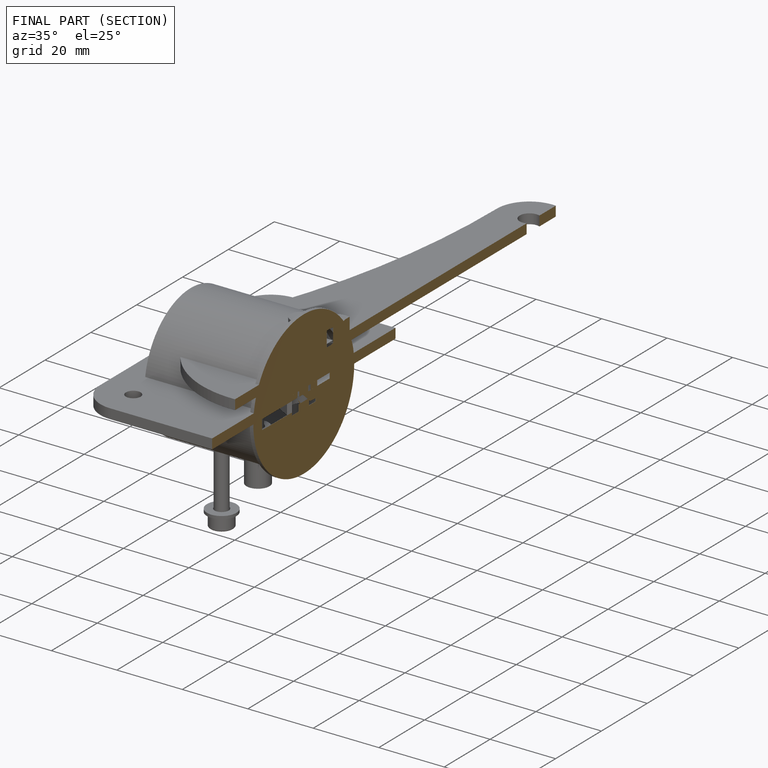
[diagram: finished part — half-section view (interior)]
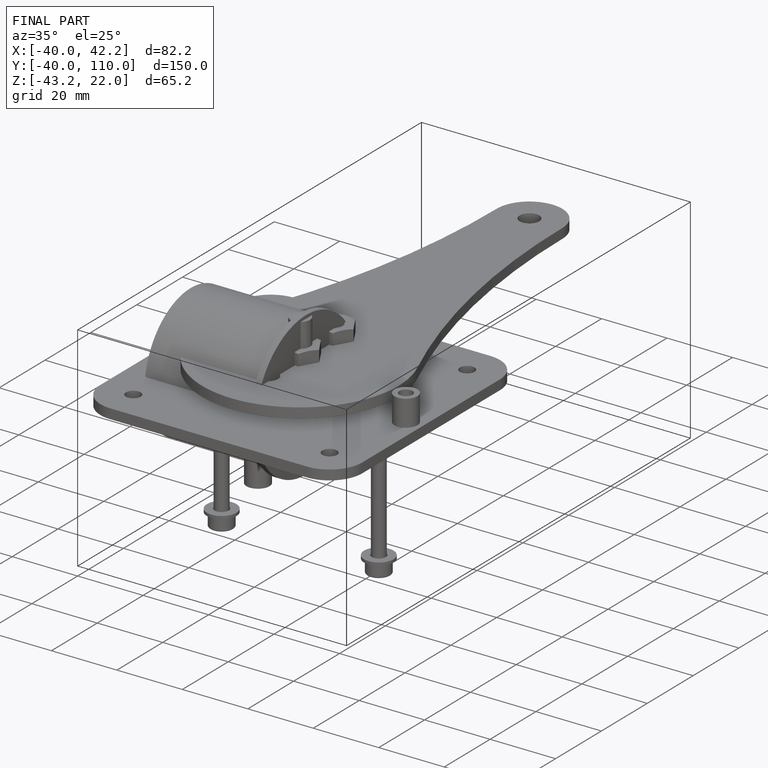
[diagram: finished part — iso view with bounding-box wireframe]
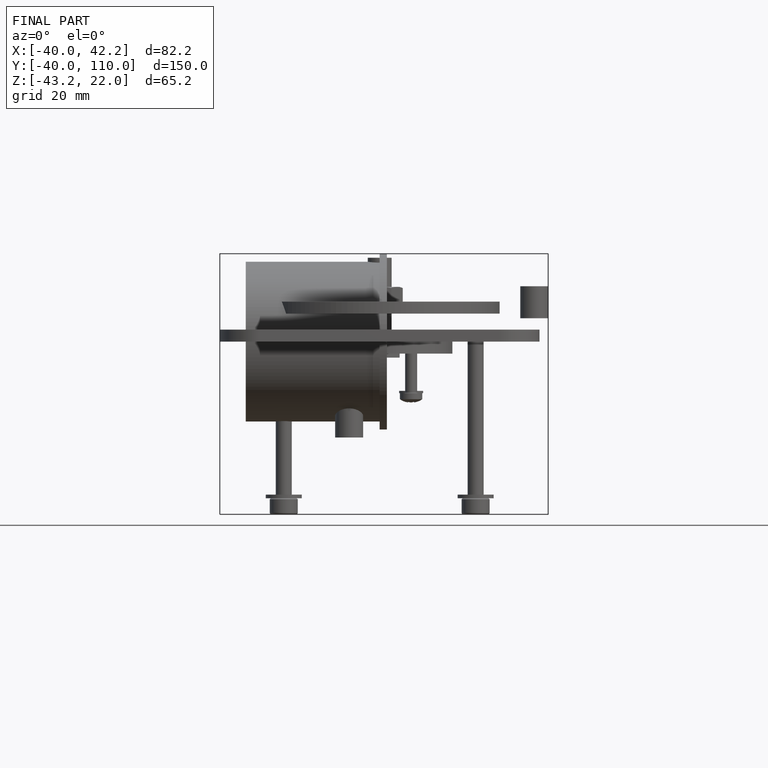
[diagram: finished part — front view with bounding-box wireframe]
